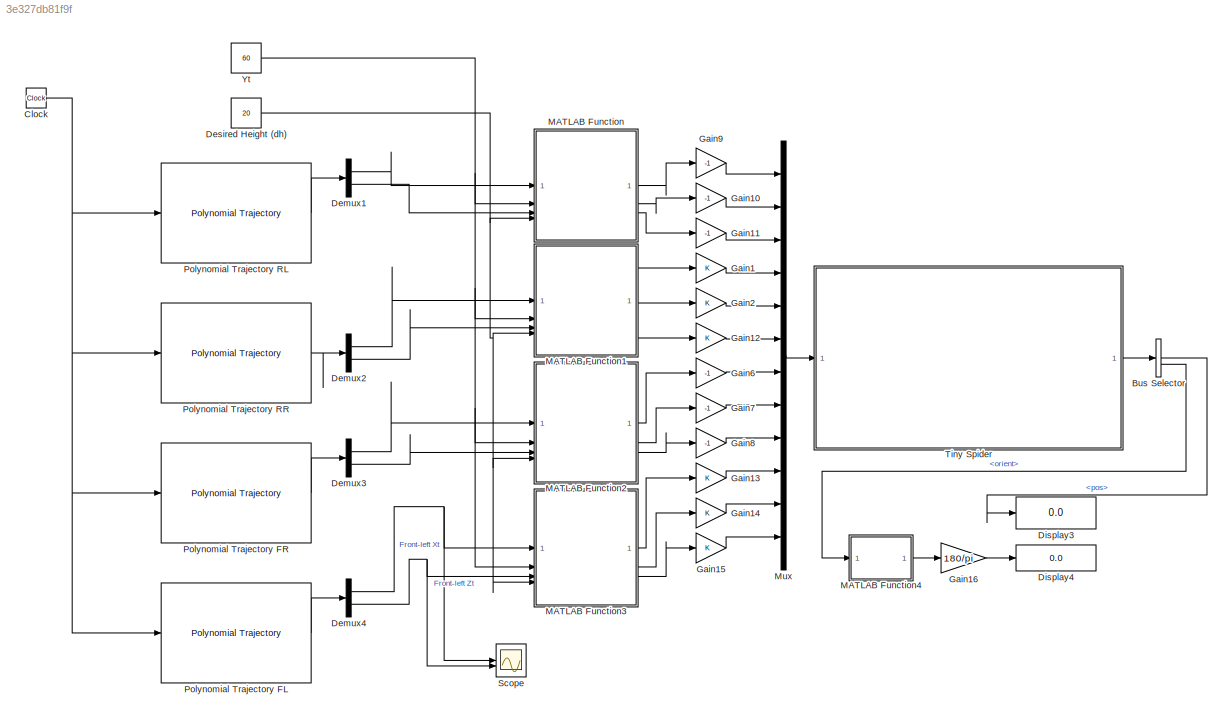
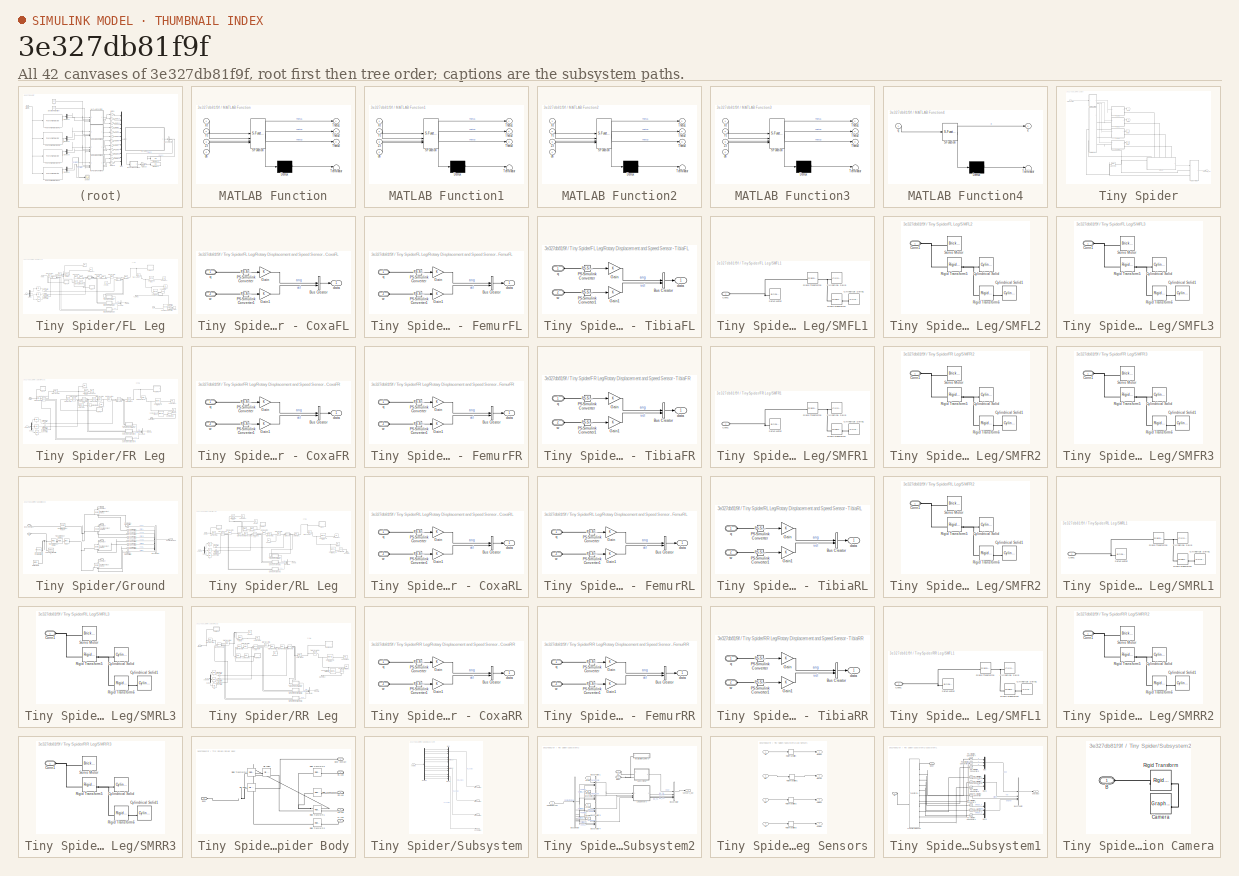
[diagram: thumbnail index - all 42 canvases of the model, root first then tree order]
MODEL slx_3e327db81f9f
KIND model
CONFIG AbsTol = auto
CONFIG EnableMultiTasking = off
CONFIG FixedStep = 0.01
CONFIG MaxStep = auto
CONFIG MinStep = auto
CONFIG RelTol = 1e-3
CONFIG SampleTimeConstraint = Unconstrained
CONFIG SolverName = ode23tb
CONFIG StartTime = 0.0
CONFIG StopTime = 10
BLOCK [BusSelector] Bus Selector
  OutputSignals = body.pos,body.orient
BLOCK [Clock] Clock
BLOCK [Demux] Demux1
  Outputs = 2
BLOCK [Demux] Demux2
  Outputs = 2
BLOCK [Demux] Demux3
  Outputs = 2
BLOCK [Demux] Demux4
  Outputs = 2
BLOCK [Constant] Desired Height (dh)
  Value = 20
BLOCK [Display] Display3
  Decimation = 1
BLOCK [Display] Display4
  Decimation = 1
BLOCK [Gain] Gain1
BLOCK [Gain] Gain10
  Gain = -1
BLOCK [Gain] Gain11
  Gain = -1
BLOCK [Gain] Gain12
BLOCK [Gain] Gain13
BLOCK [Gain] Gain14
BLOCK [Gain] Gain15
BLOCK [Gain] Gain16
  Gain = 180/pi
BLOCK [Gain] Gain2
BLOCK [Gain] Gain6
  Gain = -1
BLOCK [Gain] Gain7
  Gain = -1
BLOCK [Gain] Gain8
  Gain = -1
BLOCK [Gain] Gain9
  Gain = -1
BLOCK [SubSystem] MATLAB Function
  ErrorFcn = Stateflow.Translate.translate
  PermitHierarchicalResolution = ExplicitOnly
  SFBlockType = MATLAB Function
  TreatAsAtomicUnit = on
BLOCK [Demux] MATLAB Function/ Demux 
  Outputs = 1
BLOCK [S-Function] MATLAB Function/ SFunction 
  EnableBusSupport = on
  FunctionName = sf_sfun
  PortCounts = [4 4]
  SFcnIsStateOwnerBlock = off
  SFunctionDeploymentMode = off
  Tag = Stateflow S-Function 3
BLOCK [Terminator] MATLAB Function/ Terminator 
BLOCK [Outport] MATLAB Function/Theta1
BLOCK [Outport] MATLAB Function/Theta2
  Port = 2
BLOCK [Outport] MATLAB Function/Theta3
  Port = 3
BLOCK [Inport] MATLAB Function/Xt
BLOCK [Inport] MATLAB Function/Yt
  Port = 2
BLOCK [Inport] MATLAB Function/Zt
  Port = 3
BLOCK [Inport] MATLAB Function/dh
  Port = 4
BLOCK [SubSystem] MATLAB Function1
  ErrorFcn = Stateflow.Translate.translate
  PermitHierarchicalResolution = ExplicitOnly
  SFBlockType = MATLAB Function
  TreatAsAtomicUnit = on
BLOCK [Demux] MATLAB Function1/ Demux 
  Outputs = 1
BLOCK [S-Function] MATLAB Function1/ SFunction 
  EnableBusSupport = on
  FunctionName = sf_sfun
  PortCounts = [4 4]
  SFcnIsStateOwnerBlock = off
  SFunctionDeploymentMode = off
  Tag = Stateflow S-Function 1
BLOCK [Terminator] MATLAB Function1/ Terminator 
BLOCK [Outport] MATLAB Function1/Theta1
BLOCK [Outport] MATLAB Function1/Theta2
  Port = 2
BLOCK [Outport] MATLAB Function1/Theta3
  Port = 3
BLOCK [Inport] MATLAB Function1/Xt
BLOCK [Inport] MATLAB Function1/Yt
  Port = 2
BLOCK [Inport] MATLAB Function1/Zt
  Port = 3
BLOCK [Inport] MATLAB Function1/dh
  Port = 4
BLOCK [SubSystem] MATLAB Function2
  ErrorFcn = Stateflow.Translate.translate
  PermitHierarchicalResolution = ExplicitOnly
  SFBlockType = MATLAB Function
  TreatAsAtomicUnit = on
BLOCK [Demux] MATLAB Function2/ Demux 
  Outputs = 1
BLOCK [S-Function] MATLAB Function2/ SFunction 
  EnableBusSupport = on
  FunctionName = sf_sfun
  PortCounts = [4 4]
  SFcnIsStateOwnerBlock = off
  SFunctionDeploymentMode = off
  Tag = Stateflow S-Function 2
BLOCK [Terminator] MATLAB Function2/ Terminator 
BLOCK [Outport] MATLAB Function2/Theta1
BLOCK [Outport] MATLAB Function2/Theta2
  Port = 2
BLOCK [Outport] MATLAB Function2/Theta3
  Port = 3
BLOCK [Inport] MATLAB Function2/Xt
BLOCK [Inport] MATLAB Function2/Yt
  Port = 2
BLOCK [Inport] MATLAB Function2/Zt
  Port = 3
BLOCK [Inport] MATLAB Function2/dh
  Port = 4
BLOCK [SubSystem] MATLAB Function3
  ErrorFcn = Stateflow.Translate.translate
  PermitHierarchicalResolution = ExplicitOnly
  SFBlockType = MATLAB Function
  TreatAsAtomicUnit = on
BLOCK [Demux] MATLAB Function3/ Demux 
  Outputs = 1
BLOCK [S-Function] MATLAB Function3/ SFunction 
  EnableBusSupport = on
  FunctionName = sf_sfun
  PortCounts = [4 4]
  SFcnIsStateOwnerBlock = off
  SFunctionDeploymentMode = off
  Tag = Stateflow S-Function 4
BLOCK [Terminator] MATLAB Function3/ Terminator 
BLOCK [Outport] MATLAB Function3/Theta1
BLOCK [Outport] MATLAB Function3/Theta2
  Port = 2
BLOCK [Outport] MATLAB Function3/Theta3
  Port = 3
BLOCK [Inport] MATLAB Function3/Xt
BLOCK [Inport] MATLAB Function3/Yt
  Port = 2
BLOCK [Inport] MATLAB Function3/Zt
  Port = 3
BLOCK [Inport] MATLAB Function3/dh
  Port = 4
BLOCK [SubSystem] MATLAB Function4
  ErrorFcn = Stateflow.Translate.translate
  PermitHierarchicalResolution = ExplicitOnly
  SFBlockType = MATLAB Function
  TreatAsAtomicUnit = on
BLOCK [Demux] MATLAB Function4/ Demux 
  Outputs = 1
BLOCK [S-Function] MATLAB Function4/ SFunction 
  EnableBusSupport = on
  FunctionName = sf_sfun
  PortCounts = [1 2]
  SFcnIsStateOwnerBlock = off
  SFunctionDeploymentMode = off
  Tag = Stateflow S-Function 5
BLOCK [Terminator] MATLAB Function4/ Terminator 
BLOCK [Outport] MATLAB Function4/e
  VectorParamsAs1DForOutWhenUnconnected = off
BLOCK [Inport] MATLAB Function4/q
BLOCK [Mux] Mux
  DisplayOption = bar
  Inputs = 12
BLOCK [Reference] Polynomial Trajectory FL  REF=robotcorelib/Polynomial Trajectory
  SourceBlock = robotcorelib/Polynomial Trajectory
  SourceType = robotics.slcore.internal.block.PolyTrajSys
BLOCK [Reference] Polynomial Trajectory FR  REF=robotcorelib/Polynomial Trajectory
  SourceBlock = robotcorelib/Polynomial Trajectory
  SourceType = robotics.slcore.internal.block.PolyTrajSys
BLOCK [Reference] Polynomial Trajectory RL  REF=robotcorelib/Polynomial Trajectory
  SourceBlock = robotcorelib/Polynomial Trajectory
  SourceType = robotics.slcore.internal.block.PolyTrajSys
BLOCK [Reference] Polynomial Trajectory RR  REF=robotcorelib/Polynomial Trajectory
  SourceBlock = robotcorelib/Polynomial Trajectory
  SourceType = robotics.slcore.internal.block.PolyTrajSys
BLOCK [Scope] Scope
  Floating = off
  NumInputPorts = 2
  ScopeSpecificationString = Simulink.scopes.TimeScopeBlockCfg('CurrentConfiguration', extmgr.ConfigurationSet(extmgr.Configuration('Core','General UI',true,'FigureColor',[1 1 1]),extmgr.Configuration('Core','Source UI',true),extmgr.Configuration('Sources','WiredSimulink',true),extmgr.Configuration('Visuals','Time Domain',true,'SerializedDisplays',{struct('MinYLimReal','-16.25','MaxYLimReal','46.25','YLabelReal','','MinYLimMa...<+1694ch>
BLOCK [SubSystem] Tiny Spider
BLOCK [Reference] Tiny Spider/6-DOF Joint  REF=sm_lib/Joints/6-DOF Joint
  SourceBlock = sm_lib/Joints/6-DOF Joint
  SourceType = 6-DOF Joint
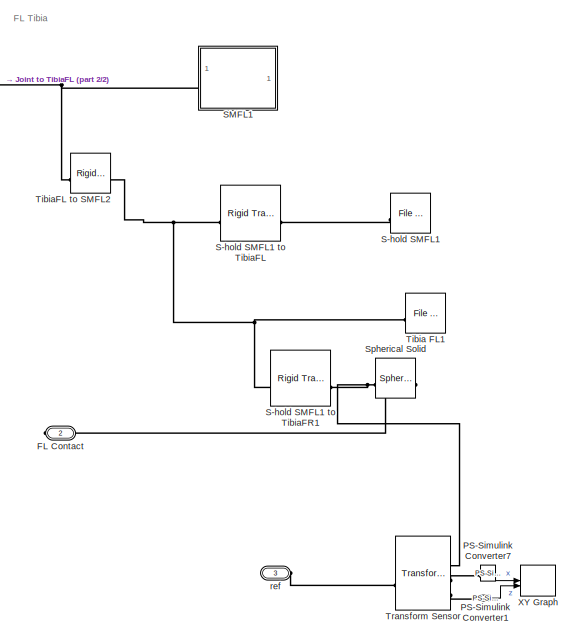
[diagram: Tiny Spider/FL Leg - part 1/2, right side, full height]
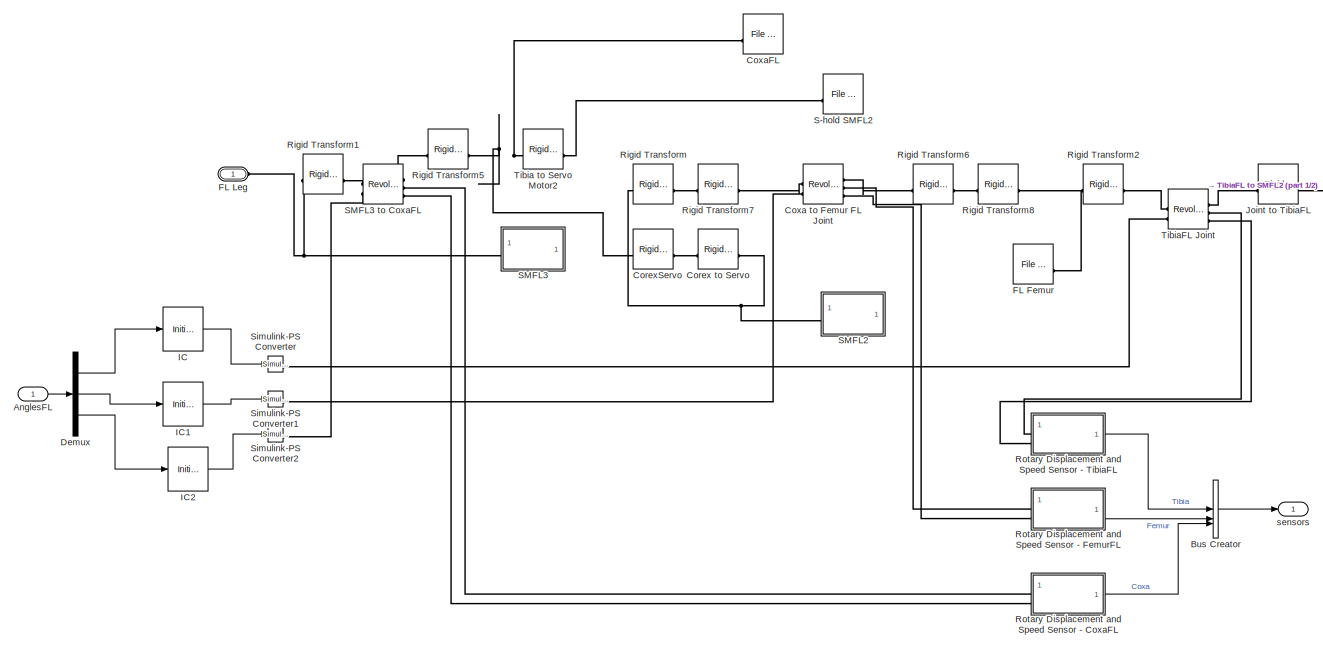
[diagram: Tiny Spider/FL Leg - part 2/2, center side, full height]
BLOCK [SubSystem] Tiny Spider/FL Leg
BLOCK [Inport] Tiny Spider/FL Leg/AnglesFL
BLOCK [BusCreator] Tiny Spider/FL Leg/Bus Creator
  DisplayOption = bar
  InheritFromInputs = on
  Inputs = 3
BLOCK [Reference] Tiny Spider/FL Leg/Corex to Servo   REF=sm_lib/Frames and
Transforms/Rigid
Transform
  SourceBlock = sm_lib/Frames and\nTransforms/Rigid\nTransform
  SourceType = Rigid\nTransform
BLOCK [Reference] Tiny Spider/FL Leg/CorexServo  REF=sm_lib/Frames and
Transforms/Rigid
Transform
  SourceBlock = sm_lib/Frames and\nTransforms/Rigid\nTransform
  SourceType = Rigid\nTransform
BLOCK [Reference] Tiny Spider/FL Leg/Coxa to Femur FL Joint  REF=sm_lib/Joints/Revolute Joint
  SourceBlock = sm_lib/Joints/Revolute Joint
  SourceType = Revolute Joint
BLOCK [Reference] Tiny Spider/FL Leg/CoxaFL  REF=sm_lib/Body Elements/File Solid
  SourceBlock = sm_lib/Body Elements/File Solid
  SourceType = File Solid
BLOCK [Demux] Tiny Spider/FL Leg/Demux
  Outputs = 3
BLOCK [PMIOPort] Tiny Spider/FL Leg/FL Contact
  Port = 2
  Side = Right
BLOCK [Reference] Tiny Spider/FL Leg/FL Femur  REF=sm_lib/Body Elements/File Solid
  SourceBlock = sm_lib/Body Elements/File Solid
  SourceType = File Solid
BLOCK [PMIOPort] Tiny Spider/FL Leg/FL Leg
  Side = Left
BLOCK [InitialCondition] Tiny Spider/FL Leg/IC
  Commented = through
  Value = init_tibiaFL_ang
BLOCK [InitialCondition] Tiny Spider/FL Leg/IC1
  Commented = through
  Value = init_femurFL_ang
BLOCK [InitialCondition] Tiny Spider/FL Leg/IC2
  Commented = through
  Value = init_coxaFL_ang
BLOCK [Reference] Tiny Spider/FL Leg/Joint to TibiaFL  REF=sm_lib/Frames and
Transforms/Rigid
Transform
  SourceBlock = sm_lib/Frames and\nTransforms/Rigid\nTransform
  SourceType = Rigid\nTransform
BLOCK [Reference] Tiny Spider/FL Leg/PS-Simulink Converter1  REF=nesl_utility/PS-Simulink
Converter
  SourceBlock = nesl_utility/PS-Simulink\nConverter
  SourceType = PS-Simulink\nConverter
BLOCK [Reference] Tiny Spider/FL Leg/PS-Simulink Converter7  REF=nesl_utility/PS-Simulink
Converter
  SourceBlock = nesl_utility/PS-Simulink\nConverter
  SourceType = PS-Simulink\nConverter
BLOCK [Reference] Tiny Spider/FL Leg/Rigid Transform  REF=sm_lib/Frames and
Transforms/Rigid
Transform
  SourceBlock = sm_lib/Frames and\nTransforms/Rigid\nTransform
  SourceType = Rigid\nTransform
BLOCK [Reference] Tiny Spider/FL Leg/Rigid Transform1  REF=sm_lib/Frames and
Transforms/Rigid
Transform
  SourceBlock = sm_lib/Frames and\nTransforms/Rigid\nTransform
  SourceType = Rigid\nTransform
BLOCK [Reference] Tiny Spider/FL Leg/Rigid Transform2  REF=sm_lib/Frames and
Transforms/Rigid
Transform
  SourceBlock = sm_lib/Frames and\nTransforms/Rigid\nTransform
  SourceType = Rigid\nTransform
BLOCK [Reference] Tiny Spider/FL Leg/Rigid Transform5  REF=sm_lib/Frames and
Transforms/Rigid
Transform
  SourceBlock = sm_lib/Frames and\nTransforms/Rigid\nTransform
  SourceType = Rigid\nTransform
BLOCK [Reference] Tiny Spider/FL Leg/Rigid Transform6  REF=sm_lib/Frames and
Transforms/Rigid
Transform
  SourceBlock = sm_lib/Frames and\nTransforms/Rigid\nTransform
  SourceType = Rigid\nTransform
BLOCK [Reference] Tiny Spider/FL Leg/Rigid Transform7  REF=sm_lib/Frames and
Transforms/Rigid
Transform
  SourceBlock = sm_lib/Frames and\nTransforms/Rigid\nTransform
  SourceType = Rigid\nTransform
BLOCK [Reference] Tiny Spider/FL Leg/Rigid Transform8  REF=sm_lib/Frames and
Transforms/Rigid
Transform
  SourceBlock = sm_lib/Frames and\nTransforms/Rigid\nTransform
  SourceType = Rigid\nTransform
BLOCK [SubSystem] Tiny Spider/FL Leg/Rotary Displacement and Speed Sensor - CoxaFL
BLOCK [BusCreator] Tiny Spider/FL Leg/Rotary Displacement and Speed Sensor - CoxaFL/Bus Creator
  DisplayOption = bar
  InheritFromInputs = on
  Inputs = 2
BLOCK [Gain] Tiny Spider/FL Leg/Rotary Displacement and Speed Sensor - CoxaFL/Gain
  OutDataTypeStr = Inherit: Same as input
BLOCK [Gain] Tiny Spider/FL Leg/Rotary Displacement and Speed Sensor - CoxaFL/Gain1
  OutDataTypeStr = Inherit: Same as input
BLOCK [Reference] Tiny Spider/FL Leg/Rotary Displacement and Speed Sensor - CoxaFL/PS-Simulink Converter  REF=nesl_utility/PS-Simulink
Converter
  SourceBlock = nesl_utility/PS-Simulink\nConverter
  SourceType = PS-Simulink\nConverter
BLOCK [Reference] Tiny Spider/FL Leg/Rotary Displacement and Speed Sensor - CoxaFL/PS-Simulink Converter1  REF=nesl_utility/PS-Simulink
Converter
  SourceBlock = nesl_utility/PS-Simulink\nConverter
  SourceType = PS-Simulink\nConverter
BLOCK [Outport] Tiny Spider/FL Leg/Rotary Displacement and Speed Sensor - CoxaFL/data
  VectorParamsAs1DForOutWhenUnconnected = off
BLOCK [PMIOPort] Tiny Spider/FL Leg/Rotary Displacement and Speed Sensor - CoxaFL/q
  Side = Left
BLOCK [PMIOPort] Tiny Spider/FL Leg/Rotary Displacement and Speed Sensor - CoxaFL/w
  Port = 2
  Side = Left
BLOCK [SubSystem] Tiny Spider/FL Leg/Rotary Displacement and Speed Sensor - FemurFL
BLOCK [BusCreator] Tiny Spider/FL Leg/Rotary Displacement and Speed Sensor - FemurFL/Bus Creator
  DisplayOption = bar
  InheritFromInputs = on
  Inputs = 2
BLOCK [Gain] Tiny Spider/FL Leg/Rotary Displacement and Speed Sensor - FemurFL/Gain
  OutDataTypeStr = Inherit: Same as input
BLOCK [Gain] Tiny Spider/FL Leg/Rotary Displacement and Speed Sensor - FemurFL/Gain1
  OutDataTypeStr = Inherit: Same as input
BLOCK [Reference] Tiny Spider/FL Leg/Rotary Displacement and Speed Sensor - FemurFL/PS-Simulink Converter  REF=nesl_utility/PS-Simulink
Converter
  SourceBlock = nesl_utility/PS-Simulink\nConverter
  SourceType = PS-Simulink\nConverter
BLOCK [Reference] Tiny Spider/FL Leg/Rotary Displacement and Speed Sensor - FemurFL/PS-Simulink Converter1  REF=nesl_utility/PS-Simulink
Converter
  SourceBlock = nesl_utility/PS-Simulink\nConverter
  SourceType = PS-Simulink\nConverter
BLOCK [Outport] Tiny Spider/FL Leg/Rotary Displacement and Speed Sensor - FemurFL/data
  VectorParamsAs1DForOutWhenUnconnected = off
BLOCK [PMIOPort] Tiny Spider/FL Leg/Rotary Displacement and Speed Sensor - FemurFL/q
  Side = Left
BLOCK [PMIOPort] Tiny Spider/FL Leg/Rotary Displacement and Speed Sensor - FemurFL/w
  Port = 2
  Side = Left
BLOCK [SubSystem] Tiny Spider/FL Leg/Rotary Displacement and Speed Sensor - TibiaFL
BLOCK [BusCreator] Tiny Spider/FL Leg/Rotary Displacement and Speed Sensor - TibiaFL/Bus Creator
  DisplayOption = bar
  InheritFromInputs = on
  Inputs = 2
BLOCK [Gain] Tiny Spider/FL Leg/Rotary Displacement and Speed Sensor - TibiaFL/Gain
BLOCK [Gain] Tiny Spider/FL Leg/Rotary Displacement and Speed Sensor - TibiaFL/Gain1
BLOCK [Reference] Tiny Spider/FL Leg/Rotary Displacement and Speed Sensor - TibiaFL/PS-Simulink Converter  REF=nesl_utility/PS-Simulink
Converter
  SourceBlock = nesl_utility/PS-Simulink\nConverter
  SourceType = PS-Simulink\nConverter
BLOCK [Reference] Tiny Spider/FL Leg/Rotary Displacement and Speed Sensor - TibiaFL/PS-Simulink Converter1  REF=nesl_utility/PS-Simulink
Converter
  SourceBlock = nesl_utility/PS-Simulink\nConverter
  SourceType = PS-Simulink\nConverter
BLOCK [Outport] Tiny Spider/FL Leg/Rotary Displacement and Speed Sensor - TibiaFL/data
  VectorParamsAs1DForOutWhenUnconnected = off
BLOCK [PMIOPort] Tiny Spider/FL Leg/Rotary Displacement and Speed Sensor - TibiaFL/q
  Side = Left
BLOCK [PMIOPort] Tiny Spider/FL Leg/Rotary Displacement and Speed Sensor - TibiaFL/w
  Port = 2
  Side = Left
BLOCK [Reference] Tiny Spider/FL Leg/S-hold SMFL1  REF=sm_lib/Body Elements/File Solid
  SourceBlock = sm_lib/Body Elements/File Solid
  SourceType = File Solid
BLOCK [Reference] Tiny Spider/FL Leg/S-hold SMFL1 to TibiaFL  REF=sm_lib/Frames and
Transforms/Rigid
Transform
  SourceBlock = sm_lib/Frames and\nTransforms/Rigid\nTransform
  SourceType = Rigid\nTransform
BLOCK [Reference] Tiny Spider/FL Leg/S-hold SMFL1 to TibiaFR1  REF=sm_lib/Frames and
Transforms/Rigid
Transform
  SourceBlock = sm_lib/Frames and\nTransforms/Rigid\nTransform
  SourceType = Rigid\nTransform
BLOCK [Reference] Tiny Spider/FL Leg/S-hold SMFL2  REF=sm_lib/Body Elements/File Solid
  SourceBlock = sm_lib/Body Elements/File Solid
  SourceType = File Solid
BLOCK [SubSystem] Tiny Spider/FL Leg/SMFL1
BLOCK [PMIOPort] Tiny Spider/FL Leg/SMFL1/Conn1
  Side = Left
BLOCK [Reference] Tiny Spider/FL Leg/SMFL1/Cylindrical Solid  REF=sm_lib/Body Elements/Cylindrical Solid
  SourceBlock = sm_lib/Body Elements/Cylindrical Solid
  SourceType = Cylindrical Solid
BLOCK [Reference] Tiny Spider/FL Leg/SMFL1/Cylindrical Solid1  REF=sm_lib/Body Elements/Cylindrical Solid
  SourceBlock = sm_lib/Body Elements/Cylindrical Solid
  SourceType = Cylindrical Solid
BLOCK [Reference] Tiny Spider/FL Leg/SMFL1/Rigid Transform5  REF=sm_lib/Frames and
Transforms/Rigid
Transform
  SourceBlock = sm_lib/Frames and\nTransforms/Rigid\nTransform
  SourceType = Rigid\nTransform
BLOCK [Reference] Tiny Spider/FL Leg/SMFL1/Rigid Transform6  REF=sm_lib/Frames and
Transforms/Rigid
Transform
  SourceBlock = sm_lib/Frames and\nTransforms/Rigid\nTransform
  SourceType = Rigid\nTransform
BLOCK [Reference] Tiny Spider/FL Leg/SMFL1/Servo Motor  REF=sm_lib/Body Elements/Brick Solid
  SourceBlock = sm_lib/Body Elements/Brick Solid
  SourceType = Brick Solid
BLOCK [SubSystem] Tiny Spider/FL Leg/SMFL2
BLOCK [PMIOPort] Tiny Spider/FL Leg/SMFL2/Conn1
  Side = Left
BLOCK [Reference] Tiny Spider/FL Leg/SMFL2/Cylindrical Solid  REF=sm_lib/Body Elements/Cylindrical Solid
  SourceBlock = sm_lib/Body Elements/Cylindrical Solid
  SourceType = Cylindrical Solid
BLOCK [Reference] Tiny Spider/FL Leg/SMFL2/Cylindrical Solid1  REF=sm_lib/Body Elements/Cylindrical Solid
  SourceBlock = sm_lib/Body Elements/Cylindrical Solid
  SourceType = Cylindrical Solid
BLOCK [Reference] Tiny Spider/FL Leg/SMFL2/Rigid Transform5  REF=sm_lib/Frames and
Transforms/Rigid
Transform
  SourceBlock = sm_lib/Frames and\nTransforms/Rigid\nTransform
  SourceType = Rigid\nTransform
BLOCK [Reference] Tiny Spider/FL Leg/SMFL2/Rigid Transform6  REF=sm_lib/Frames and
Transforms/Rigid
Transform
  SourceBlock = sm_lib/Frames and\nTransforms/Rigid\nTransform
  SourceType = Rigid\nTransform
BLOCK [Reference] Tiny Spider/FL Leg/SMFL2/Servo Motor  REF=sm_lib/Body Elements/Brick Solid
  SourceBlock = sm_lib/Body Elements/Brick Solid
  SourceType = Brick Solid
BLOCK [SubSystem] Tiny Spider/FL Leg/SMFL3
BLOCK [Reference] Tiny Spider/FL Leg/SMFL3 to CoxaFL  REF=sm_lib/Joints/Revolute Joint
  SourceBlock = sm_lib/Joints/Revolute Joint
  SourceType = Revolute Joint
BLOCK [PMIOPort] Tiny Spider/FL Leg/SMFL3/Conn1
  Side = Left
BLOCK [Reference] Tiny Spider/FL Leg/SMFL3/Cylindrical Solid  REF=sm_lib/Body Elements/Cylindrical Solid
  SourceBlock = sm_lib/Body Elements/Cylindrical Solid
  SourceType = Cylindrical Solid
BLOCK [Reference] Tiny Spider/FL Leg/SMFL3/Cylindrical Solid1  REF=sm_lib/Body Elements/Cylindrical Solid
  SourceBlock = sm_lib/Body Elements/Cylindrical Solid
  SourceType = Cylindrical Solid
BLOCK [Reference] Tiny Spider/FL Leg/SMFL3/Rigid Transform5  REF=sm_lib/Frames and
Transforms/Rigid
Transform
  SourceBlock = sm_lib/Frames and\nTransforms/Rigid\nTransform
  SourceType = Rigid\nTransform
BLOCK [Reference] Tiny Spider/FL Leg/SMFL3/Rigid Transform6  REF=sm_lib/Frames and
Transforms/Rigid
Transform
  SourceBlock = sm_lib/Frames and\nTransforms/Rigid\nTransform
  SourceType = Rigid\nTransform
BLOCK [Reference] Tiny Spider/FL Leg/SMFL3/Servo Motor  REF=sm_lib/Body Elements/Brick Solid
  SourceBlock = sm_lib/Body Elements/Brick Solid
  SourceType = Brick Solid
BLOCK [Reference] Tiny Spider/FL Leg/Simulink-PS Converter  REF=nesl_utility/Simulink-PS
Converter
  SourceBlock = nesl_utility/Simulink-PS\nConverter
  SourceType = Simulink-PS\nConverter
BLOCK [Reference] Tiny Spider/FL Leg/Simulink-PS Converter1  REF=nesl_utility/Simulink-PS
Converter
  SourceBlock = nesl_utility/Simulink-PS\nConverter
  SourceType = Simulink-PS\nConverter
BLOCK [Reference] Tiny Spider/FL Leg/Simulink-PS Converter2  REF=nesl_utility/Simulink-PS
Converter
  SourceBlock = nesl_utility/Simulink-PS\nConverter
  SourceType = Simulink-PS\nConverter
BLOCK [Reference] Tiny Spider/FL Leg/Spherical Solid  REF=sm_lib/Body Elements/Spherical Solid
  SourceBlock = sm_lib/Body Elements/Spherical Solid
  SourceType = Spherical Solid
BLOCK [Reference] Tiny Spider/FL Leg/Tibia FL1  REF=sm_lib/Body Elements/File Solid
  SourceBlock = sm_lib/Body Elements/File Solid
  SourceType = File Solid
BLOCK [Reference] Tiny Spider/FL Leg/Tibia to Servo Motor2  REF=sm_lib/Frames and
Transforms/Rigid
Transform
  SourceBlock = sm_lib/Frames and\nTransforms/Rigid\nTransform
  SourceType = Rigid\nTransform
BLOCK [Reference] Tiny Spider/FL Leg/TibiaFL Joint  REF=sm_lib/Joints/Revolute Joint
  SourceBlock = sm_lib/Joints/Revolute Joint
  SourceType = Revolute Joint
BLOCK [Reference] Tiny Spider/FL Leg/TibiaFL to SMFL2  REF=sm_lib/Frames and
Transforms/Rigid
Transform
  SourceBlock = sm_lib/Frames and\nTransforms/Rigid\nTransform
  SourceType = Rigid\nTransform
BLOCK [Reference] Tiny Spider/FL Leg/Transform Sensor  REF=sm_lib/Frames and
Transforms/Transform
Sensor
  SourceBlock = sm_lib/Frames and\nTransforms/Transform\nSensor
  SourceType = Transform\nSensor
BLOCK [Record] Tiny Spider/FL Leg/XY Graph
  CompatibilityTag = XY
  FileSettingsInternal = {"entries":[{"content":{"excelSettings":{"content":{},"type":"Streamout.ExcelSettings"}},"type":"Streamout.FileSettingStorage","uuid":""}],"packageUris":["http:\/\/schema.mathworks.com\/mf0\/streamout_blocks\/R2020a"],"version":"1.0"}
  Layout = [1 1]
  SignalsInternal = {"entries":[{"content":{"signals":[{"content":{"blockPath":[],"dimensions":[1],"domain":"","lineColor":"#a2142f","plots":[1],"port":1,"signalID":15736,"signalName":"x"},"type":"RecordBlkView.Signal","uuid":""},{"content":{"blockPath":[],"dimensions":[1],"domain":"","lineColor":"#139fff","plots":[1],"port":2,"signalID":15739,"signalName":"z"},"type":"RecordBlkView.Signal","uuid":""}]},"type":"Recor...<+130ch>
  VisualizationBindings = {"xyplotplugin":{"info":[{"series":[{"bindingParametersList":[{"parameter":"Y-Axis","signalID":15739,"signalName":"z"},{"parameter":"X-Axis","signalID":15736,"signalName":"x"}],"seriesID":28103}],"subplotID":1}]}}
BLOCK [PMIOPort] Tiny Spider/FL Leg/ref
  Port = 3
  Side = Left
BLOCK [Outport] Tiny Spider/FL Leg/sensors
  VectorParamsAs1DForOutWhenUnconnected = off
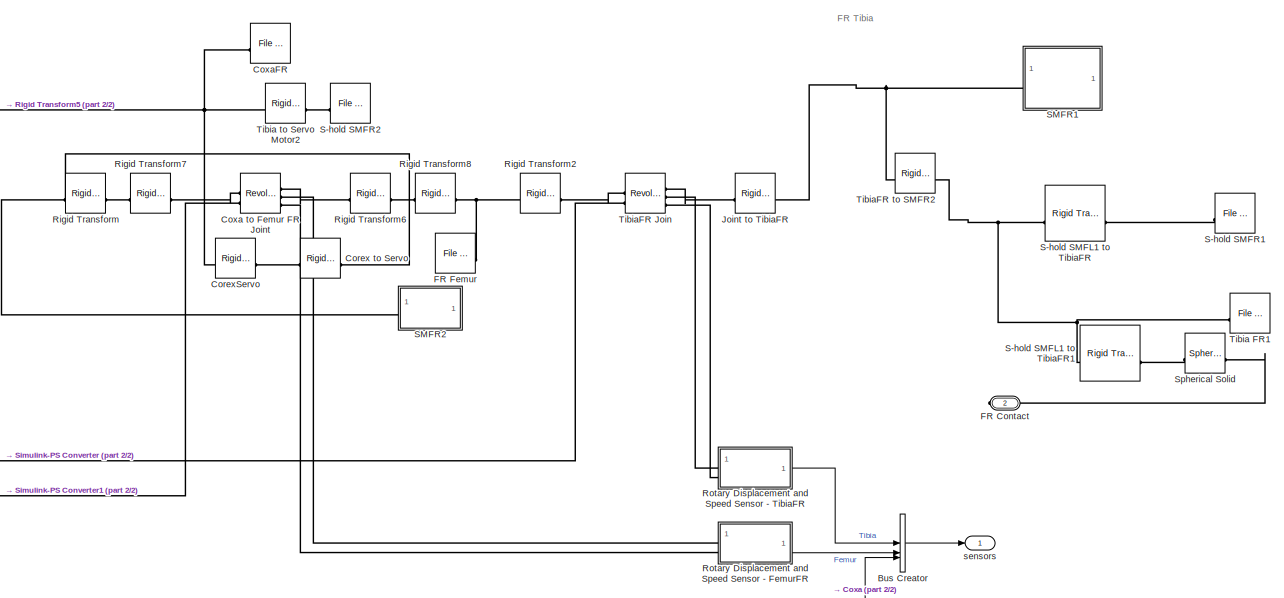
[diagram: Tiny Spider/FR Leg - part 1/2, most of the canvas]
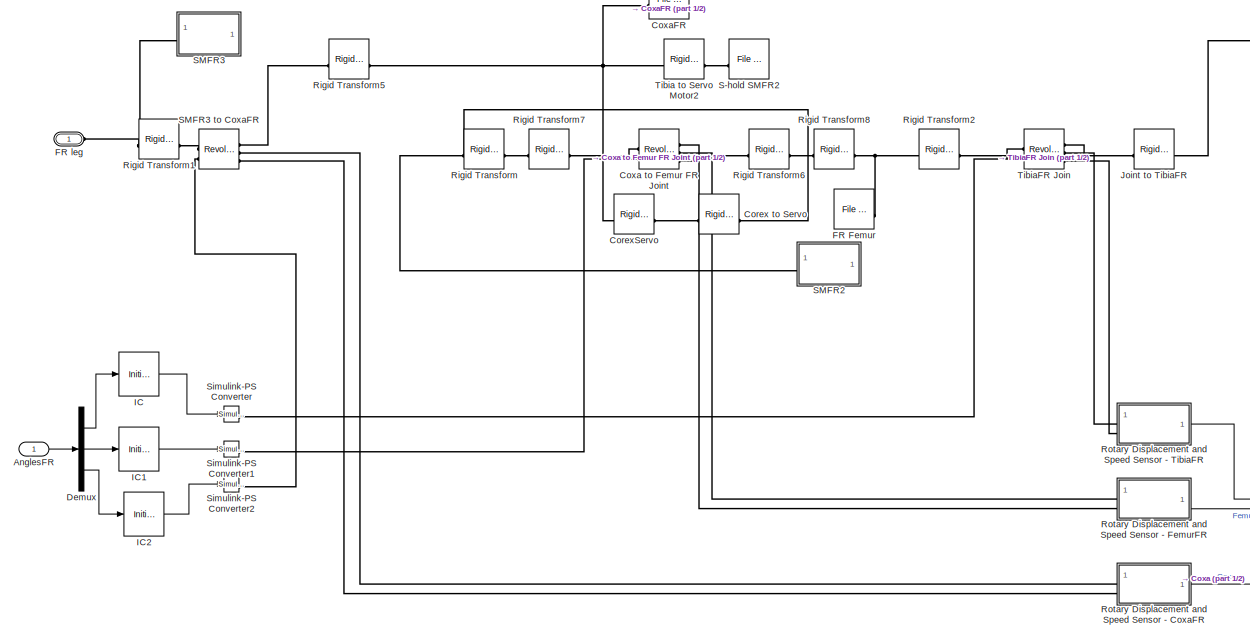
[diagram: Tiny Spider/FR Leg - part 2/2, most of the canvas]
BLOCK [SubSystem] Tiny Spider/FR Leg
BLOCK [Inport] Tiny Spider/FR Leg/AnglesFR
BLOCK [BusCreator] Tiny Spider/FR Leg/Bus Creator
  DisplayOption = bar
  InheritFromInputs = on
  Inputs = 3
BLOCK [Reference] Tiny Spider/FR Leg/Corex to Servo   REF=sm_lib/Frames and
Transforms/Rigid
Transform
  SourceBlock = sm_lib/Frames and\nTransforms/Rigid\nTransform
  SourceType = Rigid\nTransform
BLOCK [Reference] Tiny Spider/FR Leg/CorexServo  REF=sm_lib/Frames and
Transforms/Rigid
Transform
  SourceBlock = sm_lib/Frames and\nTransforms/Rigid\nTransform
  SourceType = Rigid\nTransform
BLOCK [Reference] Tiny Spider/FR Leg/Coxa to Femur FR Joint  REF=sm_lib/Joints/Revolute Joint
  SourceBlock = sm_lib/Joints/Revolute Joint
  SourceType = Revolute Joint
BLOCK [Reference] Tiny Spider/FR Leg/CoxaFR  REF=sm_lib/Body Elements/File Solid
  SourceBlock = sm_lib/Body Elements/File Solid
  SourceType = File Solid
BLOCK [Demux] Tiny Spider/FR Leg/Demux
  Outputs = 3
BLOCK [PMIOPort] Tiny Spider/FR Leg/FR Contact
  Port = 2
  Side = Right
BLOCK [Reference] Tiny Spider/FR Leg/FR Femur  REF=sm_lib/Body Elements/File Solid
  SourceBlock = sm_lib/Body Elements/File Solid
  SourceType = File Solid
BLOCK [PMIOPort] Tiny Spider/FR Leg/FR leg
  Side = Left
BLOCK [InitialCondition] Tiny Spider/FR Leg/IC
  Commented = through
  Value = init_tibiaFR_ang
BLOCK [InitialCondition] Tiny Spider/FR Leg/IC1
  Commented = through
  Value = init_femurFR_ang
BLOCK [InitialCondition] Tiny Spider/FR Leg/IC2
  Commented = through
  Value = init_coxaFR_ang
BLOCK [Reference] Tiny Spider/FR Leg/Joint to TibiaFR  REF=sm_lib/Frames and
Transforms/Rigid
Transform
  SourceBlock = sm_lib/Frames and\nTransforms/Rigid\nTransform
  SourceType = Rigid\nTransform
BLOCK [Reference] Tiny Spider/FR Leg/Rigid Transform  REF=sm_lib/Frames and
Transforms/Rigid
Transform
  SourceBlock = sm_lib/Frames and\nTransforms/Rigid\nTransform
  SourceType = Rigid\nTransform
BLOCK [Reference] Tiny Spider/FR Leg/Rigid Transform1  REF=sm_lib/Frames and
Transforms/Rigid
Transform
  SourceBlock = sm_lib/Frames and\nTransforms/Rigid\nTransform
  SourceType = Rigid\nTransform
BLOCK [Reference] Tiny Spider/FR Leg/Rigid Transform2  REF=sm_lib/Frames and
Transforms/Rigid
Transform
  SourceBlock = sm_lib/Frames and\nTransforms/Rigid\nTransform
  SourceType = Rigid\nTransform
BLOCK [Reference] Tiny Spider/FR Leg/Rigid Transform5  REF=sm_lib/Frames and
Transforms/Rigid
Transform
  SourceBlock = sm_lib/Frames and\nTransforms/Rigid\nTransform
  SourceType = Rigid\nTransform
BLOCK [Reference] Tiny Spider/FR Leg/Rigid Transform6  REF=sm_lib/Frames and
Transforms/Rigid
Transform
  SourceBlock = sm_lib/Frames and\nTransforms/Rigid\nTransform
  SourceType = Rigid\nTransform
BLOCK [Reference] Tiny Spider/FR Leg/Rigid Transform7  REF=sm_lib/Frames and
Transforms/Rigid
Transform
  SourceBlock = sm_lib/Frames and\nTransforms/Rigid\nTransform
  SourceType = Rigid\nTransform
BLOCK [Reference] Tiny Spider/FR Leg/Rigid Transform8  REF=sm_lib/Frames and
Transforms/Rigid
Transform
  SourceBlock = sm_lib/Frames and\nTransforms/Rigid\nTransform
  SourceType = Rigid\nTransform
BLOCK [SubSystem] Tiny Spider/FR Leg/Rotary Displacement and Speed Sensor - CoxaFR
BLOCK [BusCreator] Tiny Spider/FR Leg/Rotary Displacement and Speed Sensor - CoxaFR/Bus Creator
  DisplayOption = bar
  InheritFromInputs = on
  Inputs = 2
BLOCK [Gain] Tiny Spider/FR Leg/Rotary Displacement and Speed Sensor - CoxaFR/Gain
  OutDataTypeStr = Inherit: Same as input
BLOCK [Gain] Tiny Spider/FR Leg/Rotary Displacement and Speed Sensor - CoxaFR/Gain1
  OutDataTypeStr = Inherit: Same as input
BLOCK [Reference] Tiny Spider/FR Leg/Rotary Displacement and Speed Sensor - CoxaFR/PS-Simulink Converter  REF=nesl_utility/PS-Simulink
Converter
  SourceBlock = nesl_utility/PS-Simulink\nConverter
  SourceType = PS-Simulink\nConverter
BLOCK [Reference] Tiny Spider/FR Leg/Rotary Displacement and Speed Sensor - CoxaFR/PS-Simulink Converter1  REF=nesl_utility/PS-Simulink
Converter
  SourceBlock = nesl_utility/PS-Simulink\nConverter
  SourceType = PS-Simulink\nConverter
BLOCK [Outport] Tiny Spider/FR Leg/Rotary Displacement and Speed Sensor - CoxaFR/data
  VectorParamsAs1DForOutWhenUnconnected = off
BLOCK [PMIOPort] Tiny Spider/FR Leg/Rotary Displacement and Speed Sensor - CoxaFR/q
  Side = Left
BLOCK [PMIOPort] Tiny Spider/FR Leg/Rotary Displacement and Speed Sensor - CoxaFR/w
  Port = 2
  Side = Left
BLOCK [SubSystem] Tiny Spider/FR Leg/Rotary Displacement and Speed Sensor - FemurFR
BLOCK [BusCreator] Tiny Spider/FR Leg/Rotary Displacement and Speed Sensor - FemurFR/Bus Creator
  DisplayOption = bar
  InheritFromInputs = on
  Inputs = 2
BLOCK [Gain] Tiny Spider/FR Leg/Rotary Displacement and Speed Sensor - FemurFR/Gain
  OutDataTypeStr = Inherit: Same as input
BLOCK [Gain] Tiny Spider/FR Leg/Rotary Displacement and Speed Sensor - FemurFR/Gain1
  OutDataTypeStr = Inherit: Same as input
BLOCK [Reference] Tiny Spider/FR Leg/Rotary Displacement and Speed Sensor - FemurFR/PS-Simulink Converter  REF=nesl_utility/PS-Simulink
Converter
  SourceBlock = nesl_utility/PS-Simulink\nConverter
  SourceType = PS-Simulink\nConverter
BLOCK [Reference] Tiny Spider/FR Leg/Rotary Displacement and Speed Sensor - FemurFR/PS-Simulink Converter1  REF=nesl_utility/PS-Simulink
Converter
  SourceBlock = nesl_utility/PS-Simulink\nConverter
  SourceType = PS-Simulink\nConverter
BLOCK [Outport] Tiny Spider/FR Leg/Rotary Displacement and Speed Sensor - FemurFR/data
  VectorParamsAs1DForOutWhenUnconnected = off
BLOCK [PMIOPort] Tiny Spider/FR Leg/Rotary Displacement and Speed Sensor - FemurFR/q
  Side = Left
BLOCK [PMIOPort] Tiny Spider/FR Leg/Rotary Displacement and Speed Sensor - FemurFR/w
  Port = 2
  Side = Left
BLOCK [SubSystem] Tiny Spider/FR Leg/Rotary Displacement and Speed Sensor - TibiaFR
BLOCK [BusCreator] Tiny Spider/FR Leg/Rotary Displacement and Speed Sensor - TibiaFR/Bus Creator
  DisplayOption = bar
  InheritFromInputs = on
  Inputs = 2
BLOCK [Gain] Tiny Spider/FR Leg/Rotary Displacement and Speed Sensor - TibiaFR/Gain
BLOCK [Gain] Tiny Spider/FR Leg/Rotary Displacement and Speed Sensor - TibiaFR/Gain1
BLOCK [Reference] Tiny Spider/FR Leg/Rotary Displacement and Speed Sensor - TibiaFR/PS-Simulink Converter  REF=nesl_utility/PS-Simulink
Converter
  SourceBlock = nesl_utility/PS-Simulink\nConverter
  SourceType = PS-Simulink\nConverter
BLOCK [Reference] Tiny Spider/FR Leg/Rotary Displacement and Speed Sensor - TibiaFR/PS-Simulink Converter1  REF=nesl_utility/PS-Simulink
Converter
  SourceBlock = nesl_utility/PS-Simulink\nConverter
  SourceType = PS-Simulink\nConverter
BLOCK [Outport] Tiny Spider/FR Leg/Rotary Displacement and Speed Sensor - TibiaFR/data
  VectorParamsAs1DForOutWhenUnconnected = off
BLOCK [PMIOPort] Tiny Spider/FR Leg/Rotary Displacement and Speed Sensor - TibiaFR/q
  Side = Left
BLOCK [PMIOPort] Tiny Spider/FR Leg/Rotary Displacement and Speed Sensor - TibiaFR/w
  Port = 2
  Side = Left
BLOCK [Reference] Tiny Spider/FR Leg/S-hold SMFL1 to TibiaFR  REF=sm_lib/Frames and
Transforms/Rigid
Transform
  SourceBlock = sm_lib/Frames and\nTransforms/Rigid\nTransform
  SourceType = Rigid\nTransform
BLOCK [Reference] Tiny Spider/FR Leg/S-hold SMFL1 to TibiaFR1  REF=sm_lib/Frames and
Transforms/Rigid
Transform
  SourceBlock = sm_lib/Frames and\nTransforms/Rigid\nTransform
  SourceType = Rigid\nTransform
BLOCK [Reference] Tiny Spider/FR Leg/S-hold SMFR1  REF=sm_lib/Body Elements/File Solid
  SourceBlock = sm_lib/Body Elements/File Solid
  SourceType = File Solid
BLOCK [Reference] Tiny Spider/FR Leg/S-hold SMFR2  REF=sm_lib/Body Elements/File Solid
  SourceBlock = sm_lib/Body Elements/File Solid
  SourceType = File Solid
BLOCK [SubSystem] Tiny Spider/FR Leg/SMFR1
BLOCK [PMIOPort] Tiny Spider/FR Leg/SMFR1/Conn1
  Side = Left
BLOCK [Reference] Tiny Spider/FR Leg/SMFR1/Cylindrical Solid  REF=sm_lib/Body Elements/Cylindrical Solid
  SourceBlock = sm_lib/Body Elements/Cylindrical Solid
  SourceType = Cylindrical Solid
BLOCK [Reference] Tiny Spider/FR Leg/SMFR1/Cylindrical Solid1  REF=sm_lib/Body Elements/Cylindrical Solid
  SourceBlock = sm_lib/Body Elements/Cylindrical Solid
  SourceType = Cylindrical Solid
BLOCK [Reference] Tiny Spider/FR Leg/SMFR1/Rigid Transform5  REF=sm_lib/Frames and
Transforms/Rigid
Transform
  SourceBlock = sm_lib/Frames and\nTransforms/Rigid\nTransform
  SourceType = Rigid\nTransform
BLOCK [Reference] Tiny Spider/FR Leg/SMFR1/Rigid Transform6  REF=sm_lib/Frames and
Transforms/Rigid
Transform
  SourceBlock = sm_lib/Frames and\nTransforms/Rigid\nTransform
  SourceType = Rigid\nTransform
BLOCK [Reference] Tiny Spider/FR Leg/SMFR1/Servo Motor  REF=sm_lib/Body Elements/Brick Solid
  SourceBlock = sm_lib/Body Elements/Brick Solid
  SourceType = Brick Solid
BLOCK [SubSystem] Tiny Spider/FR Leg/SMFR2
BLOCK [PMIOPort] Tiny Spider/FR Leg/SMFR2/Conn1
  Side = Left
BLOCK [Reference] Tiny Spider/FR Leg/SMFR2/Cylindrical Solid  REF=sm_lib/Body Elements/Cylindrical Solid
  SourceBlock = sm_lib/Body Elements/Cylindrical Solid
  SourceType = Cylindrical Solid
BLOCK [Reference] Tiny Spider/FR Leg/SMFR2/Cylindrical Solid1  REF=sm_lib/Body Elements/Cylindrical Solid
  SourceBlock = sm_lib/Body Elements/Cylindrical Solid
  SourceType = Cylindrical Solid
BLOCK [Reference] Tiny Spider/FR Leg/SMFR2/Rigid Transform5  REF=sm_lib/Frames and
Transforms/Rigid
Transform
  SourceBlock = sm_lib/Frames and\nTransforms/Rigid\nTransform
  SourceType = Rigid\nTransform
BLOCK [Reference] Tiny Spider/FR Leg/SMFR2/Rigid Transform6  REF=sm_lib/Frames and
Transforms/Rigid
Transform
  SourceBlock = sm_lib/Frames and\nTransforms/Rigid\nTransform
  SourceType = Rigid\nTransform
BLOCK [Reference] Tiny Spider/FR Leg/SMFR2/Servo Motor  REF=sm_lib/Body Elements/Brick Solid
  SourceBlock = sm_lib/Body Elements/Brick Solid
  SourceType = Brick Solid
BLOCK [SubSystem] Tiny Spider/FR Leg/SMFR3
BLOCK [Reference] Tiny Spider/FR Leg/SMFR3 to CoxaFR  REF=sm_lib/Joints/Revolute Joint
  SourceBlock = sm_lib/Joints/Revolute Joint
  SourceType = Revolute Joint
BLOCK [PMIOPort] Tiny Spider/FR Leg/SMFR3/Conn1
  Side = Left
BLOCK [Reference] Tiny Spider/FR Leg/SMFR3/Cylindrical Solid  REF=sm_lib/Body Elements/Cylindrical Solid
  SourceBlock = sm_lib/Body Elements/Cylindrical Solid
  SourceType = Cylindrical Solid
BLOCK [Reference] Tiny Spider/FR Leg/SMFR3/Cylindrical Solid1  REF=sm_lib/Body Elements/Cylindrical Solid
  SourceBlock = sm_lib/Body Elements/Cylindrical Solid
  SourceType = Cylindrical Solid
BLOCK [Reference] Tiny Spider/FR Leg/SMFR3/Rigid Transform5  REF=sm_lib/Frames and
Transforms/Rigid
Transform
  SourceBlock = sm_lib/Frames and\nTransforms/Rigid\nTransform
  SourceType = Rigid\nTransform
BLOCK [Reference] Tiny Spider/FR Leg/SMFR3/Rigid Transform6  REF=sm_lib/Frames and
Transforms/Rigid
Transform
  SourceBlock = sm_lib/Frames and\nTransforms/Rigid\nTransform
  SourceType = Rigid\nTransform
BLOCK [Reference] Tiny Spider/FR Leg/SMFR3/Servo Motor  REF=sm_lib/Body Elements/Brick Solid
  SourceBlock = sm_lib/Body Elements/Brick Solid
  SourceType = Brick Solid
BLOCK [Reference] Tiny Spider/FR Leg/Simulink-PS Converter  REF=nesl_utility/Simulink-PS
Converter
  SourceBlock = nesl_utility/Simulink-PS\nConverter
  SourceType = Simulink-PS\nConverter
BLOCK [Reference] Tiny Spider/FR Leg/Simulink-PS Converter1  REF=nesl_utility/Simulink-PS
Converter
  SourceBlock = nesl_utility/Simulink-PS\nConverter
  SourceType = Simulink-PS\nConverter
BLOCK [Reference] Tiny Spider/FR Leg/Simulink-PS Converter2  REF=nesl_utility/Simulink-PS
Converter
  SourceBlock = nesl_utility/Simulink-PS\nConverter
  SourceType = Simulink-PS\nConverter
BLOCK [Reference] Tiny Spider/FR Leg/Spherical Solid  REF=sm_lib/Body Elements/Spherical Solid
  SourceBlock = sm_lib/Body Elements/Spherical Solid
  SourceType = Spherical Solid
BLOCK [Reference] Tiny Spider/FR Leg/Tibia FR1  REF=sm_lib/Body Elements/File Solid
  SourceBlock = sm_lib/Body Elements/File Solid
  SourceType = File Solid
BLOCK [Reference] Tiny Spider/FR Leg/Tibia to Servo Motor2  REF=sm_lib/Frames and
Transforms/Rigid
Transform
  SourceBlock = sm_lib/Frames and\nTransforms/Rigid\nTransform
  SourceType = Rigid\nTransform
BLOCK [Reference] Tiny Spider/FR Leg/TibiaFR Join  REF=sm_lib/Joints/Revolute Joint
  SourceBlock = sm_lib/Joints/Revolute Joint
  SourceType = Revolute Joint
BLOCK [Reference] Tiny Spider/FR Leg/TibiaFR to SMFR2  REF=sm_lib/Frames and
Transforms/Rigid
Transform
  SourceBlock = sm_lib/Frames and\nTransforms/Rigid\nTransform
  SourceType = Rigid\nTransform
BLOCK [Outport] Tiny Spider/FR Leg/sensors
  VectorParamsAs1DForOutWhenUnconnected = off
BLOCK [Goto] Tiny Spider/Goto
  TagVisibility = global
BLOCK [Goto] Tiny Spider/Goto1
  GotoTag = B
  TagVisibility = global
BLOCK [Goto] Tiny Spider/Goto2
  GotoTag = C
  TagVisibility = global
BLOCK [Goto] Tiny Spider/Goto3
  GotoTag = D
  TagVisibility = global
BLOCK [SubSystem] Tiny Spider/Ground
  PortSchema = {"entries":[{"content":{"sides":[{"content":{"connectorIds":["LConn1"]},"type":"ConnectorPlacement.EquallySpacedRectSide","uuid":"d7feb522-c0d5-44f8-966b-1947cd99c49a"},{"content":{"connectorIds":["Out1"],"side":"RIGHT"},"type":"ConnectorPlacement.EquallySpacedRectSide","uuid":"2db084ce-ae72-497d-a8f8-8ac11f652e40"},{"content":{"connectorIds":["LConn2","LConn3","LConn4","LConn5","LConn6"],"side":"...<+431ch>
BLOCK [PMIOPort] Tiny Spider/Ground/Body Contact
  Port = 2
  Side = Left
BLOCK [BusCreator] Tiny Spider/Ground/Bus Creator
  DisplayOption = bar
  InheritFromInputs = on
  Inputs = 8
BLOCK [Outport] Tiny Spider/Ground/Contact Forces 
BLOCK [PMIOPort] Tiny Spider/Ground/FL Contact
  Port = 6
  Side = Left
BLOCK [PMIOPort] Tiny Spider/Ground/FR Contact
  Port = 5
  Side = Left
BLOCK [Reference] Tiny Spider/Ground/Floor  REF=sm_lib/Body Elements/Brick Solid
  SourceBlock = sm_lib/Body Elements/Brick Solid
  SourceType = Brick Solid
BLOCK [Reference] Tiny Spider/Ground/Mechanism Configuration  REF=sm_lib/Utilities/Mechanism
Configuration
  SourceBlock = sm_lib/Utilities/Mechanism\nConfiguration
  SourceType = Mechanism\nConfiguration
BLOCK [Reference] Tiny Spider/Ground/PS-Simulink Converter  REF=nesl_utility/PS-Simulink
Converter
  SourceBlock = nesl_utility/PS-Simulink\nConverter
  SourceType = PS-Simulink\nConverter
BLOCK [Reference] Tiny Spider/Ground/PS-Simulink Converter1  REF=nesl_utility/PS-Simulink
Converter
  SourceBlock = nesl_utility/PS-Simulink\nConverter
  SourceType = PS-Simulink\nConverter
BLOCK [Reference] Tiny Spider/Ground/PS-Simulink Converter2  REF=nesl_utility/PS-Simulink
Converter
  SourceBlock = nesl_utility/PS-Simulink\nConverter
  SourceType = PS-Simulink\nConverter
BLOCK [Reference] Tiny Spider/Ground/PS-Simulink Converter3  REF=nesl_utility/PS-Simulink
Converter
  SourceBlock = nesl_utility/PS-Simulink\nConverter
  SourceType = PS-Simulink\nConverter
BLOCK [Reference] Tiny Spider/Ground/PS-Simulink Converter4  REF=nesl_utility/PS-Simulink
Converter
  SourceBlock = nesl_utility/PS-Simulink\nConverter
  SourceType = PS-Simulink\nConverter
BLOCK [Reference] Tiny Spider/Ground/PS-Simulink Converter5  REF=nesl_utility/PS-Simulink
Converter
  SourceBlock = nesl_utility/PS-Simulink\nConverter
  SourceType = PS-Simulink\nConverter
BLOCK [Reference] Tiny Spider/Ground/PS-Simulink Converter6  REF=nesl_utility/PS-Simulink
Converter
  SourceBlock = nesl_utility/PS-Simulink\nConverter
  SourceType = PS-Simulink\nConverter
BLOCK [Reference] Tiny Spider/Ground/PS-Simulink Converter7  REF=nesl_utility/PS-Simulink
Converter
  SourceBlock = nesl_utility/PS-Simulink\nConverter
  SourceType = PS-Simulink\nConverter
BLOCK [PMIOPort] Tiny Spider/Ground/RL Contact
  Port = 3
  Side = Left
BLOCK [PMIOPort] Tiny Spider/Ground/RR Contact
  Port = 4
  Side = Left
BLOCK [Reference] Tiny Spider/Ground/Solver Configuration  REF=nesl_utility/Solver
Configuration
  SourceBlock = nesl_utility/Solver\nConfiguration
  SourceType = Solver\nConfiguration
BLOCK [Reference] Tiny Spider/Ground/Spatial Contact Force1  REF=sm_lib/Forces and
Torques/Spatial
Contact Force
  NameLocation = left
  SourceBlock = sm_lib/Forces and\nTorques/Spatial\nContact Force
  SourceType = Spatial\nContact Force
BLOCK [Reference] Tiny Spider/Ground/Spatial Contact Force2  REF=sm_lib/Forces and
Torques/Spatial
Contact Force
  NameLocation = left
  SourceBlock = sm_lib/Forces and\nTorques/Spatial\nContact Force
  SourceType = Spatial\nContact Force
BLOCK [Reference] Tiny Spider/Ground/Spatial Contact Force3  REF=sm_lib/Forces and
Torques/Spatial
Contact Force
  NameLocation = left
  SourceBlock = sm_lib/Forces and\nTorques/Spatial\nContact Force
  SourceType = Spatial\nContact Force
BLOCK [Reference] Tiny Spider/Ground/Spatial Contact Force4  REF=sm_lib/Forces and
Torques/Spatial
Contact Force
  SourceBlock = sm_lib/Forces and\nTorques/Spatial\nContact Force
  SourceType = Spatial\nContact Force
BLOCK [Reference] Tiny Spider/Ground/Spatial Contact Force5  REF=sm_lib/Forces and
Torques/Spatial
Contact Force
  NameLocation = left
  SourceBlock = sm_lib/Forces and\nTorques/Spatial\nContact Force
  SourceType = Spatial\nContact Force
BLOCK [Reference] Tiny Spider/Ground/Transform Floor Frame  REF=sm_lib/Frames and
Transforms/Rigid
Transform
  NameLocation = top
  SourceBlock = sm_lib/Frames and\nTransforms/Rigid\nTransform
  SourceType = Rigid\nTransform
BLOCK [Reference] Tiny Spider/Ground/Transform Floor Frame1  REF=sm_lib/Frames and
Transforms/Rigid
Transform
  NameLocation = top
  SourceBlock = sm_lib/Frames and\nTransforms/Rigid\nTransform
  SourceType = Rigid\nTransform
BLOCK [Reference] Tiny Spider/Ground/World Frame  REF=sm_lib/Frames and
Transforms/World Frame
  SourceBlock = sm_lib/Frames and\nTransforms/World Frame
  SourceType = World Frame
BLOCK [PMIOPort] Tiny Spider/Ground/w
  Side = Left
BLOCK [SubSystem] Tiny Spider/RL Leg
BLOCK [Inport] Tiny Spider/RL Leg/AnglesRL
  NameLocation = left
BLOCK [BusCreator] Tiny Spider/RL Leg/Bus Creator
  DisplayOption = bar
  InheritFromInputs = on
  Inputs = 3
BLOCK [Reference] Tiny Spider/RL Leg/Corex to Servo   REF=sm_lib/Frames and
Transforms/Rigid
Transform
  SourceBlock = sm_lib/Frames and\nTransforms/Rigid\nTransform
  SourceType = Rigid\nTransform
BLOCK [Reference] Tiny Spider/RL Leg/CorexServo  REF=sm_lib/Frames and
Transforms/Rigid
Transform
  SourceBlock = sm_lib/Frames and\nTransforms/Rigid\nTransform
  SourceType = Rigid\nTransform
BLOCK [Reference] Tiny Spider/RL Leg/Coxa to Femur RL Joint  REF=sm_lib/Joints/Revolute Joint
  SourceBlock = sm_lib/Joints/Revolute Joint
  SourceType = Revolute Joint
BLOCK [Reference] Tiny Spider/RL Leg/CoxaRL  REF=sm_lib/Body Elements/File Solid
  SourceBlock = sm_lib/Body Elements/File Solid
  SourceType = File Solid
BLOCK [Demux] Tiny Spider/RL Leg/Demux
  Outputs = 3
BLOCK [InitialCondition] Tiny Spider/RL Leg/IC
  Commented = through
  Value = init_tibiaRL_ang
BLOCK [InitialCondition] Tiny Spider/RL Leg/IC1
  Commented = through
  Value = init_femurRL_ang
BLOCK [InitialCondition] Tiny Spider/RL Leg/IC2
  Commented = through
  Value = init_coxaRL_ang
BLOCK [Reference] Tiny Spider/RL Leg/Joint to TibiaRL  REF=sm_lib/Frames and
Transforms/Rigid
Transform
  SourceBlock = sm_lib/Frames and\nTransforms/Rigid\nTransform
  SourceType = Rigid\nTransform
BLOCK [Reference] Tiny Spider/RL Leg/RL Femur  REF=sm_lib/Body Elements/File Solid
  SourceBlock = sm_lib/Body Elements/File Solid
  SourceType = File Solid
BLOCK [PMIOPort] Tiny Spider/RL Leg/RL Leg
  Side = Left
BLOCK [PMIOPort] Tiny Spider/RL Leg/RL contact
  Port = 2
  Side = Right
BLOCK [Reference] Tiny Spider/RL Leg/Rigid Transform  REF=sm_lib/Frames and
Transforms/Rigid
Transform
  SourceBlock = sm_lib/Frames and\nTransforms/Rigid\nTransform
  SourceType = Rigid\nTransform
BLOCK [Reference] Tiny Spider/RL Leg/Rigid Transform1  REF=sm_lib/Frames and
Transforms/Rigid
Transform
  SourceBlock = sm_lib/Frames and\nTransforms/Rigid\nTransform
  SourceType = Rigid\nTransform
BLOCK [Reference] Tiny Spider/RL Leg/Rigid Transform2  REF=sm_lib/Frames and
Transforms/Rigid
Transform
  SourceBlock = sm_lib/Frames and\nTransforms/Rigid\nTransform
  SourceType = Rigid\nTransform
BLOCK [Reference] Tiny Spider/RL Leg/Rigid Transform5  REF=sm_lib/Frames and
Transforms/Rigid
Transform
  SourceBlock = sm_lib/Frames and\nTransforms/Rigid\nTransform
  SourceType = Rigid\nTransform
BLOCK [Reference] Tiny Spider/RL Leg/Rigid Transform6  REF=sm_lib/Frames and
Transforms/Rigid
Transform
  SourceBlock = sm_lib/Frames and\nTransforms/Rigid\nTransform
  SourceType = Rigid\nTransform
BLOCK [Reference] Tiny Spider/RL Leg/Rigid Transform7  REF=sm_lib/Frames and
Transforms/Rigid
Transform
  SourceBlock = sm_lib/Frames and\nTransforms/Rigid\nTransform
  SourceType = Rigid\nTransform
BLOCK [Reference] Tiny Spider/RL Leg/Rigid Transform8  REF=sm_lib/Frames and
Transforms/Rigid
Transform
  SourceBlock = sm_lib/Frames and\nTransforms/Rigid\nTransform
  SourceType = Rigid\nTransform
BLOCK [SubSystem] Tiny Spider/RL Leg/Rotary Displacement and Speed Sensor - CoxaRL
BLOCK [BusCreator] Tiny Spider/RL Leg/Rotary Displacement and Speed Sensor - CoxaRL/Bus Creator
  DisplayOption = bar
  InheritFromInputs = on
  Inputs = 2
BLOCK [Gain] Tiny Spider/RL Leg/Rotary Displacement and Speed Sensor - CoxaRL/Gain
  OutDataTypeStr = Inherit: Same as input
BLOCK [Gain] Tiny Spider/RL Leg/Rotary Displacement and Speed Sensor - CoxaRL/Gain1
  OutDataTypeStr = Inherit: Same as input
BLOCK [Reference] Tiny Spider/RL Leg/Rotary Displacement and Speed Sensor - CoxaRL/PS-Simulink Converter  REF=nesl_utility/PS-Simulink
Converter
  SourceBlock = nesl_utility/PS-Simulink\nConverter
  SourceType = PS-Simulink\nConverter
BLOCK [Reference] Tiny Spider/RL Leg/Rotary Displacement and Speed Sensor - CoxaRL/PS-Simulink Converter1  REF=nesl_utility/PS-Simulink
Converter
  SourceBlock = nesl_utility/PS-Simulink\nConverter
  SourceType = PS-Simulink\nConverter
BLOCK [Outport] Tiny Spider/RL Leg/Rotary Displacement and Speed Sensor - CoxaRL/data
  VectorParamsAs1DForOutWhenUnconnected = off
BLOCK [PMIOPort] Tiny Spider/RL Leg/Rotary Displacement and Speed Sensor - CoxaRL/q
  Side = Left
BLOCK [PMIOPort] Tiny Spider/RL Leg/Rotary Displacement and Speed Sensor - CoxaRL/w
  Port = 2
  Side = Left
BLOCK [SubSystem] Tiny Spider/RL Leg/Rotary Displacement and Speed Sensor - FemurRL
BLOCK [BusCreator] Tiny Spider/RL Leg/Rotary Displacement and Speed Sensor - FemurRL/Bus Creator
  DisplayOption = bar
  InheritFromInputs = on
  Inputs = 2
BLOCK [Gain] Tiny Spider/RL Leg/Rotary Displacement and Speed Sensor - FemurRL/Gain
  OutDataTypeStr = Inherit: Same as input
BLOCK [Gain] Tiny Spider/RL Leg/Rotary Displacement and Speed Sensor - FemurRL/Gain1
  OutDataTypeStr = Inherit: Same as input
BLOCK [Reference] Tiny Spider/RL Leg/Rotary Displacement and Speed Sensor - FemurRL/PS-Simulink Converter  REF=nesl_utility/PS-Simulink
Converter
  SourceBlock = nesl_utility/PS-Simulink\nConverter
  SourceType = PS-Simulink\nConverter
BLOCK [Reference] Tiny Spider/RL Leg/Rotary Displacement and Speed Sensor - FemurRL/PS-Simulink Converter1  REF=nesl_utility/PS-Simulink
Converter
  SourceBlock = nesl_utility/PS-Simulink\nConverter
  SourceType = PS-Simulink\nConverter
BLOCK [Outport] Tiny Spider/RL Leg/Rotary Displacement and Speed Sensor - FemurRL/data
  VectorParamsAs1DForOutWhenUnconnected = off
BLOCK [PMIOPort] Tiny Spider/RL Leg/Rotary Displacement and Speed Sensor - FemurRL/q
  Side = Left
BLOCK [PMIOPort] Tiny Spider/RL Leg/Rotary Displacement and Speed Sensor - FemurRL/w
  Port = 2
  Side = Left
BLOCK [SubSystem] Tiny Spider/RL Leg/Rotary Displacement and Speed Sensor - TibiaRL
BLOCK [BusCreator] Tiny Spider/RL Leg/Rotary Displacement and Speed Sensor - TibiaRL/Bus Creator
  DisplayOption = bar
  InheritFromInputs = on
  Inputs = 2
BLOCK [Gain] Tiny Spider/RL Leg/Rotary Displacement and Speed Sensor - TibiaRL/Gain
BLOCK [Gain] Tiny Spider/RL Leg/Rotary Displacement and Speed Sensor - TibiaRL/Gain1
BLOCK [Reference] Tiny Spider/RL Leg/Rotary Displacement and Speed Sensor - TibiaRL/PS-Simulink Converter  REF=nesl_utility/PS-Simulink
Converter
  SourceBlock = nesl_utility/PS-Simulink\nConverter
  SourceType = PS-Simulink\nConverter
BLOCK [Reference] Tiny Spider/RL Leg/Rotary Displacement and Speed Sensor - TibiaRL/PS-Simulink Converter1  REF=nesl_utility/PS-Simulink
Converter
  SourceBlock = nesl_utility/PS-Simulink\nConverter
  SourceType = PS-Simulink\nConverter
BLOCK [Outport] Tiny Spider/RL Leg/Rotary Displacement and Speed Sensor - TibiaRL/data
  VectorParamsAs1DForOutWhenUnconnected = off
BLOCK [PMIOPort] Tiny Spider/RL Leg/Rotary Displacement and Speed Sensor - TibiaRL/q
  Side = Left
BLOCK [PMIOPort] Tiny Spider/RL Leg/Rotary Displacement and Speed Sensor - TibiaRL/w
  Port = 2
  Side = Left
BLOCK [Reference] Tiny Spider/RL Leg/S-hold SMRL1  REF=sm_lib/Body Elements/File Solid
  SourceBlock = sm_lib/Body Elements/File Solid
  SourceType = File Solid
BLOCK [Reference] Tiny Spider/RL Leg/S-hold SMRL1 to TibiaRL  REF=sm_lib/Frames and
Transforms/Rigid
Transform
  SourceBlock = sm_lib/Frames and\nTransforms/Rigid\nTransform
  SourceType = Rigid\nTransform
BLOCK [Reference] Tiny Spider/RL Leg/S-hold SMRL1 to TibiaRL1  REF=sm_lib/Frames and
Transforms/Rigid
Transform
  SourceBlock = sm_lib/Frames and\nTransforms/Rigid\nTransform
  SourceType = Rigid\nTransform
BLOCK [Reference] Tiny Spider/RL Leg/S-hold SMRL2  REF=sm_lib/Body Elements/File Solid
  SourceBlock = sm_lib/Body Elements/File Solid
  SourceType = File Solid
BLOCK [SubSystem] Tiny Spider/RL Leg/SMFR2
BLOCK [PMIOPort] Tiny Spider/RL Leg/SMFR2/Conn1
  Side = Left
BLOCK [Reference] Tiny Spider/RL Leg/SMFR2/Cylindrical Solid  REF=sm_lib/Body Elements/Cylindrical Solid
  SourceBlock = sm_lib/Body Elements/Cylindrical Solid
  SourceType = Cylindrical Solid
BLOCK [Reference] Tiny Spider/RL Leg/SMFR2/Cylindrical Solid1  REF=sm_lib/Body Elements/Cylindrical Solid
  SourceBlock = sm_lib/Body Elements/Cylindrical Solid
  SourceType = Cylindrical Solid
BLOCK [Reference] Tiny Spider/RL Leg/SMFR2/Rigid Transform5  REF=sm_lib/Frames and
Transforms/Rigid
Transform
  SourceBlock = sm_lib/Frames and\nTransforms/Rigid\nTransform
  SourceType = Rigid\nTransform
BLOCK [Reference] Tiny Spider/RL Leg/SMFR2/Rigid Transform6  REF=sm_lib/Frames and
Transforms/Rigid
Transform
  SourceBlock = sm_lib/Frames and\nTransforms/Rigid\nTransform
  SourceType = Rigid\nTransform
BLOCK [Reference] Tiny Spider/RL Leg/SMFR2/Servo Motor  REF=sm_lib/Body Elements/Brick Solid
  SourceBlock = sm_lib/Body Elements/Brick Solid
  SourceType = Brick Solid
BLOCK [SubSystem] Tiny Spider/RL Leg/SMRL1
BLOCK [PMIOPort] Tiny Spider/RL Leg/SMRL1/Conn1
  Side = Left
BLOCK [Reference] Tiny Spider/RL Leg/SMRL1/Cylindrical Solid  REF=sm_lib/Body Elements/Cylindrical Solid
  SourceBlock = sm_lib/Body Elements/Cylindrical Solid
  SourceType = Cylindrical Solid
BLOCK [Reference] Tiny Spider/RL Leg/SMRL1/Cylindrical Solid1  REF=sm_lib/Body Elements/Cylindrical Solid
  SourceBlock = sm_lib/Body Elements/Cylindrical Solid
  SourceType = Cylindrical Solid
BLOCK [Reference] Tiny Spider/RL Leg/SMRL1/Rigid Transform5  REF=sm_lib/Frames and
Transforms/Rigid
Transform
  SourceBlock = sm_lib/Frames and\nTransforms/Rigid\nTransform
  SourceType = Rigid\nTransform
BLOCK [Reference] Tiny Spider/RL Leg/SMRL1/Rigid Transform6  REF=sm_lib/Frames and
Transforms/Rigid
Transform
  SourceBlock = sm_lib/Frames and\nTransforms/Rigid\nTransform
  SourceType = Rigid\nTransform
BLOCK [Reference] Tiny Spider/RL Leg/SMRL1/Servo Motor  REF=sm_lib/Body Elements/Brick Solid
  SourceBlock = sm_lib/Body Elements/Brick Solid
  SourceType = Brick Solid
BLOCK [SubSystem] Tiny Spider/RL Leg/SMRL3
BLOCK [Reference] Tiny Spider/RL Leg/SMRL3 to CoxaRL  REF=sm_lib/Joints/Revolute Joint
  SourceBlock = sm_lib/Joints/Revolute Joint
  SourceType = Revolute Joint
BLOCK [PMIOPort] Tiny Spider/RL Leg/SMRL3/Conn1
  Side = Left
BLOCK [Reference] Tiny Spider/RL Leg/SMRL3/Cylindrical Solid  REF=sm_lib/Body Elements/Cylindrical Solid
  SourceBlock = sm_lib/Body Elements/Cylindrical Solid
  SourceType = Cylindrical Solid
BLOCK [Reference] Tiny Spider/RL Leg/SMRL3/Cylindrical Solid1  REF=sm_lib/Body Elements/Cylindrical Solid
  SourceBlock = sm_lib/Body Elements/Cylindrical Solid
  SourceType = Cylindrical Solid
BLOCK [Reference] Tiny Spider/RL Leg/SMRL3/Rigid Transform5  REF=sm_lib/Frames and
Transforms/Rigid
Transform
  SourceBlock = sm_lib/Frames and\nTransforms/Rigid\nTransform
  SourceType = Rigid\nTransform
BLOCK [Reference] Tiny Spider/RL Leg/SMRL3/Rigid Transform6  REF=sm_lib/Frames and
Transforms/Rigid
Transform
  SourceBlock = sm_lib/Frames and\nTransforms/Rigid\nTransform
  SourceType = Rigid\nTransform
BLOCK [Reference] Tiny Spider/RL Leg/SMRL3/Servo Motor  REF=sm_lib/Body Elements/Brick Solid
  SourceBlock = sm_lib/Body Elements/Brick Solid
  SourceType = Brick Solid
BLOCK [Reference] Tiny Spider/RL Leg/Simulink-PS Converter  REF=nesl_utility/Simulink-PS
Converter
  SourceBlock = nesl_utility/Simulink-PS\nConverter
  SourceType = Simulink-PS\nConverter
BLOCK [Reference] Tiny Spider/RL Leg/Simulink-PS Converter1  REF=nesl_utility/Simulink-PS
Converter
  SourceBlock = nesl_utility/Simulink-PS\nConverter
  SourceType = Simulink-PS\nConverter
BLOCK [Reference] Tiny Spider/RL Leg/Simulink-PS Converter2  REF=nesl_utility/Simulink-PS
Converter
  SourceBlock = nesl_utility/Simulink-PS\nConverter
  SourceType = Simulink-PS\nConverter
BLOCK [Reference] Tiny Spider/RL Leg/Spherical Solid  REF=sm_lib/Body Elements/Spherical Solid
  SourceBlock = sm_lib/Body Elements/Spherical Solid
  SourceType = Spherical Solid
BLOCK [Reference] Tiny Spider/RL Leg/Tibia RL1  REF=sm_lib/Body Elements/File Solid
  SourceBlock = sm_lib/Body Elements/File Solid
  SourceType = File Solid
BLOCK [Reference] Tiny Spider/RL Leg/Tibia to Servo Motor2  REF=sm_lib/Frames and
Transforms/Rigid
Transform
  SourceBlock = sm_lib/Frames and\nTransforms/Rigid\nTransform
  SourceType = Rigid\nTransform
BLOCK [Reference] Tiny Spider/RL Leg/TibiaRL Joint  REF=sm_lib/Joints/Revolute Joint
  SourceBlock = sm_lib/Joints/Revolute Joint
  SourceType = Revolute Joint
BLOCK [Reference] Tiny Spider/RL Leg/TibiaRL to SMRL2  REF=sm_lib/Frames and
Transforms/Rigid
Transform
  SourceBlock = sm_lib/Frames and\nTransforms/Rigid\nTransform
  SourceType = Rigid\nTransform
BLOCK [Outport] Tiny Spider/RL Leg/sensors
  VectorParamsAs1DForOutWhenUnconnected = off
BLOCK [SubSystem] Tiny Spider/RR Leg
BLOCK [Inport] Tiny Spider/RR Leg/AnglesRR
BLOCK [BusCreator] Tiny Spider/RR Leg/Bus Creator
  DisplayOption = bar
  InheritFromInputs = on
  Inputs = 3
BLOCK [Reference] Tiny Spider/RR Leg/Corex to Servo   REF=sm_lib/Frames and
Transforms/Rigid
Transform
  SourceBlock = sm_lib/Frames and\nTransforms/Rigid\nTransform
  SourceType = Rigid\nTransform
BLOCK [Reference] Tiny Spider/RR Leg/CorexServo  REF=sm_lib/Frames and
Transforms/Rigid
Transform
  SourceBlock = sm_lib/Frames and\nTransforms/Rigid\nTransform
  SourceType = Rigid\nTransform
BLOCK [Reference] Tiny Spider/RR Leg/Coxa to Femur RR Joint  REF=sm_lib/Joints/Revolute Joint
  SourceBlock = sm_lib/Joints/Revolute Joint
  SourceType = Revolute Joint
BLOCK [Reference] Tiny Spider/RR Leg/CoxaFL  REF=sm_lib/Body Elements/File Solid
  SourceBlock = sm_lib/Body Elements/File Solid
  SourceType = File Solid
BLOCK [Demux] Tiny Spider/RR Leg/Demux
  Outputs = 3
BLOCK [InitialCondition] Tiny Spider/RR Leg/IC
  Commented = through
  Value = init_tibiaRR_ang
BLOCK [InitialCondition] Tiny Spider/RR Leg/IC1
  Commented = through
  Value = init_femurRR_ang
BLOCK [InitialCondition] Tiny Spider/RR Leg/IC2
  Commented = through
  Value = init_coxaRR_ang
BLOCK [Reference] Tiny Spider/RR Leg/Joint to TibiaRR  REF=sm_lib/Frames and
Transforms/Rigid
Transform
  SourceBlock = sm_lib/Frames and\nTransforms/Rigid\nTransform
  SourceType = Rigid\nTransform
BLOCK [PMIOPort] Tiny Spider/RR Leg/RR Contact
  Port = 2
  Side = Right
BLOCK [Reference] Tiny Spider/RR Leg/RR Femur  REF=sm_lib/Body Elements/File Solid
  SourceBlock = sm_lib/Body Elements/File Solid
  SourceType = File Solid
BLOCK [PMIOPort] Tiny Spider/RR Leg/RR Leg
  Side = Left
BLOCK [Reference] Tiny Spider/RR Leg/Rigid Transform  REF=sm_lib/Frames and
Transforms/Rigid
Transform
  SourceBlock = sm_lib/Frames and\nTransforms/Rigid\nTransform
  SourceType = Rigid\nTransform
BLOCK [Reference] Tiny Spider/RR Leg/Rigid Transform1  REF=sm_lib/Frames and
Transforms/Rigid
Transform
  SourceBlock = sm_lib/Frames and\nTransforms/Rigid\nTransform
  SourceType = Rigid\nTransform
BLOCK [Reference] Tiny Spider/RR Leg/Rigid Transform2  REF=sm_lib/Frames and
Transforms/Rigid
Transform
  SourceBlock = sm_lib/Frames and\nTransforms/Rigid\nTransform
  SourceType = Rigid\nTransform
BLOCK [Reference] Tiny Spider/RR Leg/Rigid Transform5  REF=sm_lib/Frames and
Transforms/Rigid
Transform
  SourceBlock = sm_lib/Frames and\nTransforms/Rigid\nTransform
  SourceType = Rigid\nTransform
BLOCK [Reference] Tiny Spider/RR Leg/Rigid Transform6  REF=sm_lib/Frames and
Transforms/Rigid
Transform
  SourceBlock = sm_lib/Frames and\nTransforms/Rigid\nTransform
  SourceType = Rigid\nTransform
BLOCK [Reference] Tiny Spider/RR Leg/Rigid Transform7  REF=sm_lib/Frames and
Transforms/Rigid
Transform
  SourceBlock = sm_lib/Frames and\nTransforms/Rigid\nTransform
  SourceType = Rigid\nTransform
BLOCK [Reference] Tiny Spider/RR Leg/Rigid Transform8  REF=sm_lib/Frames and
Transforms/Rigid
Transform
  SourceBlock = sm_lib/Frames and\nTransforms/Rigid\nTransform
  SourceType = Rigid\nTransform
BLOCK [SubSystem] Tiny Spider/RR Leg/Rotary Displacement and Speed Sensor - CoxaRR
BLOCK [BusCreator] Tiny Spider/RR Leg/Rotary Displacement and Speed Sensor - CoxaRR/Bus Creator
  DisplayOption = bar
  InheritFromInputs = on
  Inputs = 2
BLOCK [Gain] Tiny Spider/RR Leg/Rotary Displacement and Speed Sensor - CoxaRR/Gain
  OutDataTypeStr = Inherit: Same as input
BLOCK [Gain] Tiny Spider/RR Leg/Rotary Displacement and Speed Sensor - CoxaRR/Gain1
  OutDataTypeStr = Inherit: Same as input
BLOCK [Reference] Tiny Spider/RR Leg/Rotary Displacement and Speed Sensor - CoxaRR/PS-Simulink Converter  REF=nesl_utility/PS-Simulink
Converter
  SourceBlock = nesl_utility/PS-Simulink\nConverter
  SourceType = PS-Simulink\nConverter
BLOCK [Reference] Tiny Spider/RR Leg/Rotary Displacement and Speed Sensor - CoxaRR/PS-Simulink Converter1  REF=nesl_utility/PS-Simulink
Converter
  SourceBlock = nesl_utility/PS-Simulink\nConverter
  SourceType = PS-Simulink\nConverter
BLOCK [Outport] Tiny Spider/RR Leg/Rotary Displacement and Speed Sensor - CoxaRR/data
  VectorParamsAs1DForOutWhenUnconnected = off
BLOCK [PMIOPort] Tiny Spider/RR Leg/Rotary Displacement and Speed Sensor - CoxaRR/q
  Side = Left
BLOCK [PMIOPort] Tiny Spider/RR Leg/Rotary Displacement and Speed Sensor - CoxaRR/w
  Port = 2
  Side = Left
BLOCK [SubSystem] Tiny Spider/RR Leg/Rotary Displacement and Speed Sensor - FemurRR
BLOCK [BusCreator] Tiny Spider/RR Leg/Rotary Displacement and Speed Sensor - FemurRR/Bus Creator
  DisplayOption = bar
  InheritFromInputs = on
  Inputs = 2
BLOCK [Gain] Tiny Spider/RR Leg/Rotary Displacement and Speed Sensor - FemurRR/Gain
  OutDataTypeStr = Inherit: Same as input
BLOCK [Gain] Tiny Spider/RR Leg/Rotary Displacement and Speed Sensor - FemurRR/Gain1
  OutDataTypeStr = Inherit: Same as input
BLOCK [Reference] Tiny Spider/RR Leg/Rotary Displacement and Speed Sensor - FemurRR/PS-Simulink Converter  REF=nesl_utility/PS-Simulink
Converter
  SourceBlock = nesl_utility/PS-Simulink\nConverter
  SourceType = PS-Simulink\nConverter
BLOCK [Reference] Tiny Spider/RR Leg/Rotary Displacement and Speed Sensor - FemurRR/PS-Simulink Converter1  REF=nesl_utility/PS-Simulink
Converter
  SourceBlock = nesl_utility/PS-Simulink\nConverter
  SourceType = PS-Simulink\nConverter
BLOCK [Outport] Tiny Spider/RR Leg/Rotary Displacement and Speed Sensor - FemurRR/data
  VectorParamsAs1DForOutWhenUnconnected = off
BLOCK [PMIOPort] Tiny Spider/RR Leg/Rotary Displacement and Speed Sensor - FemurRR/q
  Side = Left
BLOCK [PMIOPort] Tiny Spider/RR Leg/Rotary Displacement and Speed Sensor - FemurRR/w
  Port = 2
  Side = Left
BLOCK [SubSystem] Tiny Spider/RR Leg/Rotary Displacement and Speed Sensor - TibiaRR
BLOCK [BusCreator] Tiny Spider/RR Leg/Rotary Displacement and Speed Sensor - TibiaRR/Bus Creator
  DisplayOption = bar
  InheritFromInputs = on
  Inputs = 2
BLOCK [Gain] Tiny Spider/RR Leg/Rotary Displacement and Speed Sensor - TibiaRR/Gain
BLOCK [Gain] Tiny Spider/RR Leg/Rotary Displacement and Speed Sensor - TibiaRR/Gain1
BLOCK [Reference] Tiny Spider/RR Leg/Rotary Displacement and Speed Sensor - TibiaRR/PS-Simulink Converter  REF=nesl_utility/PS-Simulink
Converter
  SourceBlock = nesl_utility/PS-Simulink\nConverter
  SourceType = PS-Simulink\nConverter
BLOCK [Reference] Tiny Spider/RR Leg/Rotary Displacement and Speed Sensor - TibiaRR/PS-Simulink Converter1  REF=nesl_utility/PS-Simulink
Converter
  SourceBlock = nesl_utility/PS-Simulink\nConverter
  SourceType = PS-Simulink\nConverter
BLOCK [Outport] Tiny Spider/RR Leg/Rotary Displacement and Speed Sensor - TibiaRR/data
  VectorParamsAs1DForOutWhenUnconnected = off
BLOCK [PMIOPort] Tiny Spider/RR Leg/Rotary Displacement and Speed Sensor - TibiaRR/q
  Side = Left
BLOCK [PMIOPort] Tiny Spider/RR Leg/Rotary Displacement and Speed Sensor - TibiaRR/w
  Port = 2
  Side = Left
BLOCK [Reference] Tiny Spider/RR Leg/S-hold SMFL1 to TibiaRR  REF=sm_lib/Frames and
Transforms/Rigid
Transform
  SourceBlock = sm_lib/Frames and\nTransforms/Rigid\nTransform
  SourceType = Rigid\nTransform
BLOCK [Reference] Tiny Spider/RR Leg/S-hold SMRR1  REF=sm_lib/Body Elements/File Solid
  SourceBlock = sm_lib/Body Elements/File Solid
  SourceType = File Solid
BLOCK [Reference] Tiny Spider/RR Leg/S-hold SMRR1 to TibiaRR1  REF=sm_lib/Frames and
Transforms/Rigid
Transform
  SourceBlock = sm_lib/Frames and\nTransforms/Rigid\nTransform
  SourceType = Rigid\nTransform
BLOCK [Reference] Tiny Spider/RR Leg/S-hold SMRR2  REF=sm_lib/Body Elements/File Solid
  SourceBlock = sm_lib/Body Elements/File Solid
  SourceType = File Solid
BLOCK [SubSystem] Tiny Spider/RR Leg/SMFL1
BLOCK [PMIOPort] Tiny Spider/RR Leg/SMFL1/Conn1
  Side = Left
BLOCK [Reference] Tiny Spider/RR Leg/SMFL1/Cylindrical Solid  REF=sm_lib/Body Elements/Cylindrical Solid
  SourceBlock = sm_lib/Body Elements/Cylindrical Solid
  SourceType = Cylindrical Solid
BLOCK [Reference] Tiny Spider/RR Leg/SMFL1/Cylindrical Solid1  REF=sm_lib/Body Elements/Cylindrical Solid
  SourceBlock = sm_lib/Body Elements/Cylindrical Solid
  SourceType = Cylindrical Solid
BLOCK [Reference] Tiny Spider/RR Leg/SMFL1/Rigid Transform5  REF=sm_lib/Frames and
Transforms/Rigid
Transform
  SourceBlock = sm_lib/Frames and\nTransforms/Rigid\nTransform
  SourceType = Rigid\nTransform
BLOCK [Reference] Tiny Spider/RR Leg/SMFL1/Rigid Transform6  REF=sm_lib/Frames and
Transforms/Rigid
Transform
  SourceBlock = sm_lib/Frames and\nTransforms/Rigid\nTransform
  SourceType = Rigid\nTransform
BLOCK [Reference] Tiny Spider/RR Leg/SMFL1/Servo Motor  REF=sm_lib/Body Elements/Brick Solid
  SourceBlock = sm_lib/Body Elements/Brick Solid
  SourceType = Brick Solid
BLOCK [SubSystem] Tiny Spider/RR Leg/SMRR2
BLOCK [PMIOPort] Tiny Spider/RR Leg/SMRR2/Conn1
  Side = Left
BLOCK [Reference] Tiny Spider/RR Leg/SMRR2/Cylindrical Solid  REF=sm_lib/Body Elements/Cylindrical Solid
  SourceBlock = sm_lib/Body Elements/Cylindrical Solid
  SourceType = Cylindrical Solid
BLOCK [Reference] Tiny Spider/RR Leg/SMRR2/Cylindrical Solid1  REF=sm_lib/Body Elements/Cylindrical Solid
  SourceBlock = sm_lib/Body Elements/Cylindrical Solid
  SourceType = Cylindrical Solid
BLOCK [Reference] Tiny Spider/RR Leg/SMRR2/Rigid Transform5  REF=sm_lib/Frames and
Transforms/Rigid
Transform
  SourceBlock = sm_lib/Frames and\nTransforms/Rigid\nTransform
  SourceType = Rigid\nTransform
BLOCK [Reference] Tiny Spider/RR Leg/SMRR2/Rigid Transform6  REF=sm_lib/Frames and
Transforms/Rigid
Transform
  SourceBlock = sm_lib/Frames and\nTransforms/Rigid\nTransform
  SourceType = Rigid\nTransform
BLOCK [Reference] Tiny Spider/RR Leg/SMRR2/Servo Motor  REF=sm_lib/Body Elements/Brick Solid
  SourceBlock = sm_lib/Body Elements/Brick Solid
  SourceType = Brick Solid
BLOCK [SubSystem] Tiny Spider/RR Leg/SMRR3
BLOCK [Reference] Tiny Spider/RR Leg/SMRR3 to CoxaRR  REF=sm_lib/Joints/Revolute Joint
  SourceBlock = sm_lib/Joints/Revolute Joint
  SourceType = Revolute Joint
BLOCK [PMIOPort] Tiny Spider/RR Leg/SMRR3/Conn1
  Side = Left
BLOCK [Reference] Tiny Spider/RR Leg/SMRR3/Cylindrical Solid  REF=sm_lib/Body Elements/Cylindrical Solid
  SourceBlock = sm_lib/Body Elements/Cylindrical Solid
  SourceType = Cylindrical Solid
BLOCK [Reference] Tiny Spider/RR Leg/SMRR3/Cylindrical Solid1  REF=sm_lib/Body Elements/Cylindrical Solid
  SourceBlock = sm_lib/Body Elements/Cylindrical Solid
  SourceType = Cylindrical Solid
BLOCK [Reference] Tiny Spider/RR Leg/SMRR3/Rigid Transform5  REF=sm_lib/Frames and
Transforms/Rigid
Transform
  SourceBlock = sm_lib/Frames and\nTransforms/Rigid\nTransform
  SourceType = Rigid\nTransform
BLOCK [Reference] Tiny Spider/RR Leg/SMRR3/Rigid Transform6  REF=sm_lib/Frames and
Transforms/Rigid
Transform
  SourceBlock = sm_lib/Frames and\nTransforms/Rigid\nTransform
  SourceType = Rigid\nTransform
BLOCK [Reference] Tiny Spider/RR Leg/SMRR3/Servo Motor  REF=sm_lib/Body Elements/Brick Solid
  SourceBlock = sm_lib/Body Elements/Brick Solid
  SourceType = Brick Solid
BLOCK [Reference] Tiny Spider/RR Leg/Simulink-PS Converter  REF=nesl_utility/Simulink-PS
Converter
  SourceBlock = nesl_utility/Simulink-PS\nConverter
  SourceType = Simulink-PS\nConverter
BLOCK [Reference] Tiny Spider/RR Leg/Simulink-PS Converter1  REF=nesl_utility/Simulink-PS
Converter
  SourceBlock = nesl_utility/Simulink-PS\nConverter
  SourceType = Simulink-PS\nConverter
BLOCK [Reference] Tiny Spider/RR Leg/Simulink-PS Converter2  REF=nesl_utility/Simulink-PS
Converter
  SourceBlock = nesl_utility/Simulink-PS\nConverter
  SourceType = Simulink-PS\nConverter
BLOCK [Reference] Tiny Spider/RR Leg/Spherical Solid  REF=sm_lib/Body Elements/Spherical Solid
  SourceBlock = sm_lib/Body Elements/Spherical Solid
  SourceType = Spherical Solid
BLOCK [Reference] Tiny Spider/RR Leg/Tibia RR1  REF=sm_lib/Body Elements/File Solid
  SourceBlock = sm_lib/Body Elements/File Solid
  SourceType = File Solid
BLOCK [Reference] Tiny Spider/RR Leg/Tibia to Servo Motor2  REF=sm_lib/Frames and
Transforms/Rigid
Transform
  SourceBlock = sm_lib/Frames and\nTransforms/Rigid\nTransform
  SourceType = Rigid\nTransform
BLOCK [Reference] Tiny Spider/RR Leg/TibiaFL to SMRR2  REF=sm_lib/Frames and
Transforms/Rigid
Transform
  SourceBlock = sm_lib/Frames and\nTransforms/Rigid\nTransform
  SourceType = Rigid\nTransform
BLOCK [Reference] Tiny Spider/RR Leg/TibiaRR Joint  REF=sm_lib/Joints/Revolute Joint
  SourceBlock = sm_lib/Joints/Revolute Joint
  SourceType = Revolute Joint
BLOCK [Outport] Tiny Spider/RR Leg/sensors
  VectorParamsAs1DForOutWhenUnconnected = off
BLOCK [Inport] Tiny Spider/ServoAngles
BLOCK [SubSystem] Tiny Spider/Spider Body
BLOCK [PMIOPort] Tiny Spider/Spider Body/Body
  Port = 3
  Side = Left
BLOCK [PMIOPort] Tiny Spider/Spider Body/Body Contact
  Port = 6
  Side = Left
BLOCK [PMIOPort] Tiny Spider/Spider Body/FL Leg
  Port = 5
  Side = Right
BLOCK [PMIOPort] Tiny Spider/Spider Body/FR Leg
  Port = 4
  Side = Right
BLOCK [Reference] Tiny Spider/Spider Body/File Solid1  REF=sm_lib/Body Elements/File Solid
  SourceBlock = sm_lib/Body Elements/File Solid
  SourceType = File Solid
BLOCK [Reference] Tiny Spider/Spider Body/File Solid2  REF=sm_lib/Body Elements/File Solid
  SourceBlock = sm_lib/Body Elements/File Solid
  SourceType = File Solid
BLOCK [PMIOPort] Tiny Spider/Spider Body/RL Leg
  Side = Right
BLOCK [PMIOPort] Tiny Spider/Spider Body/RR Leg
  Port = 2
  Side = Right
BLOCK [Reference] Tiny Spider/Spider Body/Rigid Transform1  REF=sm_lib/Frames and
Transforms/Rigid
Transform
  SourceBlock = sm_lib/Frames and\nTransforms/Rigid\nTransform
  SourceType = Rigid\nTransform
BLOCK [Reference] Tiny Spider/Spider Body/Rigid Transform2  REF=sm_lib/Frames and
Transforms/Rigid
Transform
  SourceBlock = sm_lib/Frames and\nTransforms/Rigid\nTransform
  SourceType = Rigid\nTransform
BLOCK [Reference] Tiny Spider/Spider Body/Rigid Transform3  REF=sm_lib/Frames and
Transforms/Rigid
Transform
  SourceBlock = sm_lib/Frames and\nTransforms/Rigid\nTransform
  SourceType = Rigid\nTransform
BLOCK [Reference] Tiny Spider/Spider Body/Rigid Transform5  REF=sm_lib/Frames and
Transforms/Rigid
Transform
  SourceBlock = sm_lib/Frames and\nTransforms/Rigid\nTransform
  SourceType = Rigid\nTransform
BLOCK [Reference] Tiny Spider/Spider Body/Rigid Transform6  REF=sm_lib/Frames and
Transforms/Rigid
Transform
  SourceBlock = sm_lib/Frames and\nTransforms/Rigid\nTransform
  SourceType = Rigid\nTransform
BLOCK [SubSystem] Tiny Spider/Subsystem
BLOCK [Inport] Tiny Spider/Subsystem/Angles
BLOCK [Demux] Tiny Spider/Subsystem/Demux
  Outputs = 12
BLOCK [Outport] Tiny Spider/Subsystem/FL Angles
  Port = 4
BLOCK [Outport] Tiny Spider/Subsystem/FR Angles
  Port = 3
BLOCK [Mux] Tiny Spider/Subsystem/Mux
  DisplayOption = bar
  Inputs = 3
BLOCK [Mux] Tiny Spider/Subsystem/Mux1
  DisplayOption = bar
  Inputs = 3
BLOCK [Mux] Tiny Spider/Subsystem/Mux2
  DisplayOption = bar
  Inputs = 3
BLOCK [Mux] Tiny Spider/Subsystem/Mux3
  DisplayOption = bar
  Inputs = 3
BLOCK [Outport] Tiny Spider/Subsystem/RL Angles
BLOCK [Outport] Tiny Spider/Subsystem/RR Angles
  Port = 2
BLOCK [SubSystem] Tiny Spider/Subsystem2
BLOCK [PMIOPort] Tiny Spider/Subsystem2/Body
  Port = 2
  Side = Left
BLOCK [BusCreator] Tiny Spider/Subsystem2/Bus Creator
  DisplayOption = bar
  InheritFromInputs = on
  Inputs = 5
BLOCK [BusCreator] Tiny Spider/Subsystem2/Bus Creator1
  DisplayOption = bar
  InheritFromInputs = on
  Inputs = 3
BLOCK [BusCreator] Tiny Spider/Subsystem2/Bus Creator2
  DisplayOption = bar
  InheritFromInputs = on
  Inputs = 3
BLOCK [BusCreator] Tiny Spider/Subsystem2/Bus Creator3
  DisplayOption = bar
  InheritFromInputs = on
  Inputs = 3
BLOCK [BusCreator] Tiny Spider/Subsystem2/Bus Creator4
  DisplayOption = bar
  InheritFromInputs = on
  Inputs = 3
BLOCK [BusSelector] Tiny Spider/Subsystem2/Bus Selector
  OutputSignals = FnRL,FfrmRL,FnRR,FfrmRR,FnFR,FfrmFR,FnFL,FfrmFL
BLOCK [Inport] Tiny Spider/Subsystem2/Contact Forces 
BLOCK [From] Tiny Spider/Subsystem2/From
  TagVisibility = global
BLOCK [From] Tiny Spider/Subsystem2/From1
  GotoTag = B
  TagVisibility = global
BLOCK [From] Tiny Spider/Subsystem2/From2
  GotoTag = C
  TagVisibility = global
BLOCK [From] Tiny Spider/Subsystem2/From3
  GotoTag = D
  TagVisibility = global
BLOCK [SubSystem] Tiny Spider/Subsystem2/Leg Sensors
BLOCK [Outport] Tiny Spider/Subsystem2/Leg Sensors/FFRus
  Port = 4
  VectorParamsAs1DForOutWhenUnconnected = off
BLOCK [Inport] Tiny Spider/Subsystem2/Leg Sensors/FL
  Port = 4
BLOCK [Inport] Tiny Spider/Subsystem2/Leg Sensors/FR
  Port = 3
BLOCK [Outport] Tiny Spider/Subsystem2/Leg Sensors/FRbus
  Port = 3
  VectorParamsAs1DForOutWhenUnconnected = off
BLOCK [Outport] Tiny Spider/Subsystem2/Leg Sensors/RFLus
  Port = 2
  VectorParamsAs1DForOutWhenUnconnected = off
BLOCK [Outport] Tiny Spider/Subsystem2/Leg Sensors/RFRus
  VectorParamsAs1DForOutWhenUnconnected = off
BLOCK [Inport] Tiny Spider/Subsystem2/Leg Sensors/RL
BLOCK [Inport] Tiny Spider/Subsystem2/Leg Sensors/RR
  Port = 2
BLOCK [RateTransition] Tiny Spider/Subsystem2/Leg Sensors/Rate Transition
  Commented = through
  OutPortSampleTime = Ts
BLOCK [RateTransition] Tiny Spider/Subsystem2/Leg Sensors/Rate Transition1
  Commented = through
  OutPortSampleTime = Ts
BLOCK [RateTransition] Tiny Spider/Subsystem2/Leg Sensors/Rate Transition2
  Commented = through
  OutPortSampleTime = Ts
BLOCK [RateTransition] Tiny Spider/Subsystem2/Leg Sensors/Rate Transition3
  Commented = through
  OutPortSampleTime = Ts
BLOCK [SubSystem] Tiny Spider/Subsystem2/Subsystem1
BLOCK [PMIOPort] Tiny Spider/Subsystem2/Subsystem1/Body
  Port = 2
  Side = Left
BLOCK [BusCreator] Tiny Spider/Subsystem2/Subsystem1/Bus Creator
  DisplayOption = bar
  InheritFromInputs = on
  Inputs = 4
BLOCK [Mux] Tiny Spider/Subsystem2/Subsystem1/Mux
  DisplayOption = bar
  Inputs = 3
BLOCK [Mux] Tiny Spider/Subsystem2/Subsystem1/Mux1
  DisplayOption = bar
  Inputs = 3
BLOCK [Mux] Tiny Spider/Subsystem2/Subsystem1/Mux3
  DisplayOption = bar
  Inputs = 3
BLOCK [Reference] Tiny Spider/Subsystem2/Subsystem1/PS-Simulink Converter  REF=nesl_utility/PS-Simulink
Converter
  SourceBlock = nesl_utility/PS-Simulink\nConverter
  SourceType = PS-Simulink\nConverter
BLOCK [Reference] Tiny Spider/Subsystem2/Subsystem1/PS-Simulink Converter1  REF=nesl_utility/PS-Simulink
Converter
  SourceBlock = nesl_utility/PS-Simulink\nConverter
  SourceType = PS-Simulink\nConverter
BLOCK [Reference] Tiny Spider/Subsystem2/Subsystem1/PS-Simulink Converter2  REF=nesl_utility/PS-Simulink
Converter
  SourceBlock = nesl_utility/PS-Simulink\nConverter
  SourceType = PS-Simulink\nConverter
BLOCK [Reference] Tiny Spider/Subsystem2/Subsystem1/PS-Simulink Converter3  REF=nesl_utility/PS-Simulink
Converter
  SourceBlock = nesl_utility/PS-Simulink\nConverter
  SourceType = PS-Simulink\nConverter
BLOCK [Reference] Tiny Spider/Subsystem2/Subsystem1/PS-Simulink Converter4  REF=nesl_utility/PS-Simulink
Converter
  SourceBlock = nesl_utility/PS-Simulink\nConverter
  SourceType = PS-Simulink\nConverter
BLOCK [Reference] Tiny Spider/Subsystem2/Subsystem1/PS-Simulink Converter5  REF=nesl_utility/PS-Simulink
Converter
  SourceBlock = nesl_utility/PS-Simulink\nConverter
  SourceType = PS-Simulink\nConverter
BLOCK [Reference] Tiny Spider/Subsystem2/Subsystem1/PS-Simulink Converter6  REF=nesl_utility/PS-Simulink
Converter
  SourceBlock = nesl_utility/PS-Simulink\nConverter
  SourceType = PS-Simulink\nConverter
BLOCK [Reference] Tiny Spider/Subsystem2/Subsystem1/PS-Simulink Converter7  REF=nesl_utility/PS-Simulink
Converter
  SourceBlock = nesl_utility/PS-Simulink\nConverter
  SourceType = PS-Simulink\nConverter
BLOCK [Reference] Tiny Spider/Subsystem2/Subsystem1/PS-Simulink Converter8  REF=nesl_utility/PS-Simulink
Converter
  SourceBlock = nesl_utility/PS-Simulink\nConverter
  SourceType = PS-Simulink\nConverter
BLOCK [Reference] Tiny Spider/Subsystem2/Subsystem1/PS-Simulink Converter9  REF=nesl_utility/PS-Simulink
Converter
  SourceBlock = nesl_utility/PS-Simulink\nConverter
  SourceType = PS-Simulink\nConverter
BLOCK [Reference] Tiny Spider/Subsystem2/Subsystem1/Transform Sensor  REF=sm_lib/Frames and
Transforms/Transform
Sensor
  SourceBlock = sm_lib/Frames and\nTransforms/Transform\nSensor
  SourceType = Transform\nSensor
BLOCK [PMIOPort] Tiny Spider/Subsystem2/Subsystem1/W
  NameLocation = top
  Side = Left
BLOCK [Outport] Tiny Spider/Subsystem2/Subsystem1/bodyBus
  VectorParamsAs1DForOutWhenUnconnected = off
BLOCK [SubSystem] Tiny Spider/Subsystem2/Visualization Camera
BLOCK [PMIOPort] Tiny Spider/Subsystem2/Visualization Camera/B
  Side = Left
BLOCK [Reference] Tiny Spider/Subsystem2/Visualization Camera/Camera  REF=sm_lib/Body Elements/Graphic
  SourceBlock = sm_lib/Body Elements/Graphic
  SourceType = Graphic
BLOCK [Reference] Tiny Spider/Subsystem2/Visualization Camera/Rigid Transform  REF=sm_lib/Frames and
Transforms/Rigid
Transform
  SourceBlock = sm_lib/Frames and\nTransforms/Rigid\nTransform
  SourceType = Rigid\nTransform
BLOCK [PMIOPort] Tiny Spider/Subsystem2/W
  Side = Left
BLOCK [Outport] Tiny Spider/Subsystem2/sensors_out
  VectorParamsAs1DForOutWhenUnconnected = off
BLOCK [Outport] Tiny Spider/sensors_out
  VectorParamsAs1DForOutWhenUnconnected = off
BLOCK [Constant] Yt
  Value = 60
ANNOTATION Tiny Spider/FL Leg: FL Tibia
ANNOTATION Tiny Spider/FR Leg: FR Tibia
ANNOTATION Tiny Spider/RL Leg: FR Tibia
ANNOTATION Tiny Spider/RR Leg: FL Tibia
LINE Bus Selector:1 -> Display3:1
LINE Bus Selector:2 -> MATLAB Function4:1
NET Clock:1 -> Polynomial Trajectory FL:1, Polynomial Trajectory FR:1, Polynomial Trajectory RL:1, Polynomial Trajectory RR:1
LINE Demux1:1 -> MATLAB Function:1
LINE Demux1:2 -> MATLAB Function:3
LINE Demux2:1 -> MATLAB Function1:1
LINE Demux2:2 -> MATLAB Function1:3
LINE Demux3:1 -> MATLAB Function2:1
LINE Demux3:2 -> MATLAB Function2:3
NET Demux4:1 -> MATLAB Function3:1, Scope:1
NET Demux4:2 -> MATLAB Function3:3, Scope:2
NET Desired Height (dh):1 -> MATLAB Function1:4, MATLAB Function2:4, MATLAB Function3:4, MATLAB Function:4
LINE Gain10:1 -> Mux:2
LINE Gain11:1 -> Mux:3
LINE Gain12:1 -> Mux:6
LINE Gain13:1 -> Mux:10
LINE Gain14:1 -> Mux:11
LINE Gain15:1 -> Mux:12
LINE Gain16:1 -> Display4:1
LINE Gain1:1 -> Mux:4
LINE Gain2:1 -> Mux:5
LINE Gain6:1 -> Mux:7
LINE Gain7:1 -> Mux:8
LINE Gain8:1 -> Mux:9
LINE Gain9:1 -> Mux:1
LINE MATLAB Function1:1 -> Gain1:1
LINE MATLAB Function1:2 -> Gain2:1
LINE MATLAB Function1:3 -> Gain12:1
LINE MATLAB Function2:1 -> Gain6:1
LINE MATLAB Function2:2 -> Gain7:1
LINE MATLAB Function2:3 -> Gain8:1
LINE MATLAB Function3:1 -> Gain13:1
LINE MATLAB Function3:2 -> Gain14:1
LINE MATLAB Function3:3 -> Gain15:1
LINE MATLAB Function4:1 -> Gain16:1
LINE MATLAB Function:1 -> Gain9:1
LINE MATLAB Function:2 -> Gain10:1
LINE MATLAB Function:3 -> Gain11:1
LINE Mux:1 -> Tiny Spider:1
LINE Polynomial Trajectory FL:1 -> Demux4:1
LINE Polynomial Trajectory FR:1 -> Demux3:1
LINE Polynomial Trajectory RL:1 -> Demux1:1
LINE Polynomial Trajectory RR:1 -> Demux2:1
LINE Tiny Spider/FL Leg/AnglesFL:1 -> Tiny Spider/FL Leg/Demux:1
LINE Tiny Spider/FL Leg/Bus Creator:1 -> Tiny Spider/FL Leg/sensors:1
LINE Tiny Spider/FL Leg/Demux:1 -> Tiny Spider/FL Leg/IC:1
LINE Tiny Spider/FL Leg/Demux:2 -> Tiny Spider/FL Leg/IC1:1
LINE Tiny Spider/FL Leg/Demux:3 -> Tiny Spider/FL Leg/IC2:1
LINE Tiny Spider/FL Leg/IC1:1 -> Tiny Spider/FL Leg/Simulink-PS Converter1:1
LINE Tiny Spider/FL Leg/IC2:1 -> Tiny Spider/FL Leg/Simulink-PS Converter2:1
LINE Tiny Spider/FL Leg/IC:1 -> Tiny Spider/FL Leg/Simulink-PS Converter:1
LINE Tiny Spider/FL Leg/PS-Simulink Converter1:1 -> Tiny Spider/FL Leg/XY Graph:2
LINE Tiny Spider/FL Leg/PS-Simulink Converter7:1 -> Tiny Spider/FL Leg/XY Graph:1
LINE Tiny Spider/FL Leg/Rotary Displacement and Speed Sensor - CoxaFL/Bus Creator:1 -> Tiny Spider/FL Leg/Rotary Displacement and Speed Sensor - CoxaFL/data:1
LINE Tiny Spider/FL Leg/Rotary Displacement and Speed Sensor - CoxaFL/Gain1:1 -> Tiny Spider/FL Leg/Rotary Displacement and Speed Sensor - CoxaFL/Bus Creator:2
LINE Tiny Spider/FL Leg/Rotary Displacement and Speed Sensor - CoxaFL/Gain:1 -> Tiny Spider/FL Leg/Rotary Displacement and Speed Sensor - CoxaFL/Bus Creator:1
LINE Tiny Spider/FL Leg/Rotary Displacement and Speed Sensor - CoxaFL/PS-Simulink Converter1:1 -> Tiny Spider/FL Leg/Rotary Displacement and Speed Sensor - CoxaFL/Gain1:1
LINE Tiny Spider/FL Leg/Rotary Displacement and Speed Sensor - CoxaFL/PS-Simulink Converter:1 -> Tiny Spider/FL Leg/Rotary Displacement and Speed Sensor - CoxaFL/Gain:1
LINE Tiny Spider/FL Leg/Rotary Displacement and Speed Sensor - CoxaFL:1 -> Tiny Spider/FL Leg/Bus Creator:3
LINE Tiny Spider/FL Leg/Rotary Displacement and Speed Sensor - FemurFL/Bus Creator:1 -> Tiny Spider/FL Leg/Rotary Displacement and Speed Sensor - FemurFL/data:1
LINE Tiny Spider/FL Leg/Rotary Displacement and Speed Sensor - FemurFL/Gain1:1 -> Tiny Spider/FL Leg/Rotary Displacement and Speed Sensor - FemurFL/Bus Creator:2
LINE Tiny Spider/FL Leg/Rotary Displacement and Speed Sensor - FemurFL/Gain:1 -> Tiny Spider/FL Leg/Rotary Displacement and Speed Sensor - FemurFL/Bus Creator:1
LINE Tiny Spider/FL Leg/Rotary Displacement and Speed Sensor - FemurFL/PS-Simulink Converter1:1 -> Tiny Spider/FL Leg/Rotary Displacement and Speed Sensor - FemurFL/Gain1:1
LINE Tiny Spider/FL Leg/Rotary Displacement and Speed Sensor - FemurFL/PS-Simulink Converter:1 -> Tiny Spider/FL Leg/Rotary Displacement and Speed Sensor - FemurFL/Gain:1
LINE Tiny Spider/FL Leg/Rotary Displacement and Speed Sensor - FemurFL:1 -> Tiny Spider/FL Leg/Bus Creator:2
LINE Tiny Spider/FL Leg/Rotary Displacement and Speed Sensor - TibiaFL/Bus Creator:1 -> Tiny Spider/FL Leg/Rotary Displacement and Speed Sensor - TibiaFL/data:1
LINE Tiny Spider/FL Leg/Rotary Displacement and Speed Sensor - TibiaFL/Gain1:1 -> Tiny Spider/FL Leg/Rotary Displacement and Speed Sensor - TibiaFL/Bus Creator:2
LINE Tiny Spider/FL Leg/Rotary Displacement and Speed Sensor - TibiaFL/Gain:1 -> Tiny Spider/FL Leg/Rotary Displacement and Speed Sensor - TibiaFL/Bus Creator:1
LINE Tiny Spider/FL Leg/Rotary Displacement and Speed Sensor - TibiaFL/PS-Simulink Converter1:1 -> Tiny Spider/FL Leg/Rotary Displacement and Speed Sensor - TibiaFL/Gain1:1
LINE Tiny Spider/FL Leg/Rotary Displacement and Speed Sensor - TibiaFL/PS-Simulink Converter:1 -> Tiny Spider/FL Leg/Rotary Displacement and Speed Sensor - TibiaFL/Gain:1
LINE Tiny Spider/FL Leg/Rotary Displacement and Speed Sensor - TibiaFL:1 -> Tiny Spider/FL Leg/Bus Creator:1
LINE Tiny Spider/FL Leg:1 -> Tiny Spider/Goto3:1
LINE Tiny Spider/FR Leg/AnglesFR:1 -> Tiny Spider/FR Leg/Demux:1
LINE Tiny Spider/FR Leg/Bus Creator:1 -> Tiny Spider/FR Leg/sensors:1
LINE Tiny Spider/FR Leg/Demux:1 -> Tiny Spider/FR Leg/IC:1
LINE Tiny Spider/FR Leg/Demux:2 -> Tiny Spider/FR Leg/IC1:1
LINE Tiny Spider/FR Leg/Demux:3 -> Tiny Spider/FR Leg/IC2:1
LINE Tiny Spider/FR Leg/IC1:1 -> Tiny Spider/FR Leg/Simulink-PS Converter1:1
LINE Tiny Spider/FR Leg/IC2:1 -> Tiny Spider/FR Leg/Simulink-PS Converter2:1
LINE Tiny Spider/FR Leg/IC:1 -> Tiny Spider/FR Leg/Simulink-PS Converter:1
LINE Tiny Spider/FR Leg/Rotary Displacement and Speed Sensor - CoxaFR/Bus Creator:1 -> Tiny Spider/FR Leg/Rotary Displacement and Speed Sensor - CoxaFR/data:1
LINE Tiny Spider/FR Leg/Rotary Displacement and Speed Sensor - CoxaFR/Gain1:1 -> Tiny Spider/FR Leg/Rotary Displacement and Speed Sensor - CoxaFR/Bus Creator:2
LINE Tiny Spider/FR Leg/Rotary Displacement and Speed Sensor - CoxaFR/Gain:1 -> Tiny Spider/FR Leg/Rotary Displacement and Speed Sensor - CoxaFR/Bus Creator:1
LINE Tiny Spider/FR Leg/Rotary Displacement and Speed Sensor - CoxaFR/PS-Simulink Converter1:1 -> Tiny Spider/FR Leg/Rotary Displacement and Speed Sensor - CoxaFR/Gain1:1
LINE Tiny Spider/FR Leg/Rotary Displacement and Speed Sensor - CoxaFR/PS-Simulink Converter:1 -> Tiny Spider/FR Leg/Rotary Displacement and Speed Sensor - CoxaFR/Gain:1
LINE Tiny Spider/FR Leg/Rotary Displacement and Speed Sensor - CoxaFR:1 -> Tiny Spider/FR Leg/Bus Creator:3
LINE Tiny Spider/FR Leg/Rotary Displacement and Speed Sensor - FemurFR/Bus Creator:1 -> Tiny Spider/FR Leg/Rotary Displacement and Speed Sensor - FemurFR/data:1
LINE Tiny Spider/FR Leg/Rotary Displacement and Speed Sensor - FemurFR/Gain1:1 -> Tiny Spider/FR Leg/Rotary Displacement and Speed Sensor - FemurFR/Bus Creator:2
LINE Tiny Spider/FR Leg/Rotary Displacement and Speed Sensor - FemurFR/Gain:1 -> Tiny Spider/FR Leg/Rotary Displacement and Speed Sensor - FemurFR/Bus Creator:1
LINE Tiny Spider/FR Leg/Rotary Displacement and Speed Sensor - FemurFR/PS-Simulink Converter1:1 -> Tiny Spider/FR Leg/Rotary Displacement and Speed Sensor - FemurFR/Gain1:1
LINE Tiny Spider/FR Leg/Rotary Displacement and Speed Sensor - FemurFR/PS-Simulink Converter:1 -> Tiny Spider/FR Leg/Rotary Displacement and Speed Sensor - FemurFR/Gain:1
LINE Tiny Spider/FR Leg/Rotary Displacement and Speed Sensor - FemurFR:1 -> Tiny Spider/FR Leg/Bus Creator:2
LINE Tiny Spider/FR Leg/Rotary Displacement and Speed Sensor - TibiaFR/Bus Creator:1 -> Tiny Spider/FR Leg/Rotary Displacement and Speed Sensor - TibiaFR/data:1
LINE Tiny Spider/FR Leg/Rotary Displacement and Speed Sensor - TibiaFR/Gain1:1 -> Tiny Spider/FR Leg/Rotary Displacement and Speed Sensor - TibiaFR/Bus Creator:2
LINE Tiny Spider/FR Leg/Rotary Displacement and Speed Sensor - TibiaFR/Gain:1 -> Tiny Spider/FR Leg/Rotary Displacement and Speed Sensor - TibiaFR/Bus Creator:1
LINE Tiny Spider/FR Leg/Rotary Displacement and Speed Sensor - TibiaFR/PS-Simulink Converter1:1 -> Tiny Spider/FR Leg/Rotary Displacement and Speed Sensor - TibiaFR/Gain1:1
LINE Tiny Spider/FR Leg/Rotary Displacement and Speed Sensor - TibiaFR/PS-Simulink Converter:1 -> Tiny Spider/FR Leg/Rotary Displacement and Speed Sensor - TibiaFR/Gain:1
LINE Tiny Spider/FR Leg/Rotary Displacement and Speed Sensor - TibiaFR:1 -> Tiny Spider/FR Leg/Bus Creator:1
LINE Tiny Spider/FR Leg:1 -> Tiny Spider/Goto2:1
LINE Tiny Spider/Ground/Bus Creator:1 -> Tiny Spider/Ground/Contact Forces :1
LINE Tiny Spider/Ground/PS-Simulink Converter1:1 -> Tiny Spider/Ground/Bus Creator:2
LINE Tiny Spider/Ground/PS-Simulink Converter2:1 -> Tiny Spider/Ground/Bus Creator:3
LINE Tiny Spider/Ground/PS-Simulink Converter3:1 -> Tiny Spider/Ground/Bus Creator:4
LINE Tiny Spider/Ground/PS-Simulink Converter4:1 -> Tiny Spider/Ground/Bus Creator:5
LINE Tiny Spider/Ground/PS-Simulink Converter5:1 -> Tiny Spider/Ground/Bus Creator:6
LINE Tiny Spider/Ground/PS-Simulink Converter6:1 -> Tiny Spider/Ground/Bus Creator:7
LINE Tiny Spider/Ground/PS-Simulink Converter7:1 -> Tiny Spider/Ground/Bus Creator:8
LINE Tiny Spider/Ground/PS-Simulink Converter:1 -> Tiny Spider/Ground/Bus Creator:1
LINE Tiny Spider/Ground:1 -> Tiny Spider/Subsystem2:1
LINE Tiny Spider/RL Leg/AnglesRL:1 -> Tiny Spider/RL Leg/Demux:1
LINE Tiny Spider/RL Leg/Bus Creator:1 -> Tiny Spider/RL Leg/sensors:1
LINE Tiny Spider/RL Leg/Demux:1 -> Tiny Spider/RL Leg/IC:1
LINE Tiny Spider/RL Leg/Demux:2 -> Tiny Spider/RL Leg/IC1:1
LINE Tiny Spider/RL Leg/Demux:3 -> Tiny Spider/RL Leg/IC2:1
LINE Tiny Spider/RL Leg/IC1:1 -> Tiny Spider/RL Leg/Simulink-PS Converter1:1
LINE Tiny Spider/RL Leg/IC2:1 -> Tiny Spider/RL Leg/Simulink-PS Converter2:1
LINE Tiny Spider/RL Leg/IC:1 -> Tiny Spider/RL Leg/Simulink-PS Converter:1
LINE Tiny Spider/RL Leg/Rotary Displacement and Speed Sensor - CoxaRL/Bus Creator:1 -> Tiny Spider/RL Leg/Rotary Displacement and Speed Sensor - CoxaRL/data:1
LINE Tiny Spider/RL Leg/Rotary Displacement and Speed Sensor - CoxaRL/Gain1:1 -> Tiny Spider/RL Leg/Rotary Displacement and Speed Sensor - CoxaRL/Bus Creator:2
LINE Tiny Spider/RL Leg/Rotary Displacement and Speed Sensor - CoxaRL/Gain:1 -> Tiny Spider/RL Leg/Rotary Displacement and Speed Sensor - CoxaRL/Bus Creator:1
LINE Tiny Spider/RL Leg/Rotary Displacement and Speed Sensor - CoxaRL/PS-Simulink Converter1:1 -> Tiny Spider/RL Leg/Rotary Displacement and Speed Sensor - CoxaRL/Gain1:1
LINE Tiny Spider/RL Leg/Rotary Displacement and Speed Sensor - CoxaRL/PS-Simulink Converter:1 -> Tiny Spider/RL Leg/Rotary Displacement and Speed Sensor - CoxaRL/Gain:1
LINE Tiny Spider/RL Leg/Rotary Displacement and Speed Sensor - CoxaRL:1 -> Tiny Spider/RL Leg/Bus Creator:3
LINE Tiny Spider/RL Leg/Rotary Displacement and Speed Sensor - FemurRL/Bus Creator:1 -> Tiny Spider/RL Leg/Rotary Displacement and Speed Sensor - FemurRL/data:1
LINE Tiny Spider/RL Leg/Rotary Displacement and Speed Sensor - FemurRL/Gain1:1 -> Tiny Spider/RL Leg/Rotary Displacement and Speed Sensor - FemurRL/Bus Creator:2
LINE Tiny Spider/RL Leg/Rotary Displacement and Speed Sensor - FemurRL/Gain:1 -> Tiny Spider/RL Leg/Rotary Displacement and Speed Sensor - FemurRL/Bus Creator:1
LINE Tiny Spider/RL Leg/Rotary Displacement and Speed Sensor - FemurRL/PS-Simulink Converter1:1 -> Tiny Spider/RL Leg/Rotary Displacement and Speed Sensor - FemurRL/Gain1:1
LINE Tiny Spider/RL Leg/Rotary Displacement and Speed Sensor - FemurRL/PS-Simulink Converter:1 -> Tiny Spider/RL Leg/Rotary Displacement and Speed Sensor - FemurRL/Gain:1
LINE Tiny Spider/RL Leg/Rotary Displacement and Speed Sensor - FemurRL:1 -> Tiny Spider/RL Leg/Bus Creator:2
LINE Tiny Spider/RL Leg/Rotary Displacement and Speed Sensor - TibiaRL/Bus Creator:1 -> Tiny Spider/RL Leg/Rotary Displacement and Speed Sensor - TibiaRL/data:1
LINE Tiny Spider/RL Leg/Rotary Displacement and Speed Sensor - TibiaRL/Gain1:1 -> Tiny Spider/RL Leg/Rotary Displacement and Speed Sensor - TibiaRL/Bus Creator:2
LINE Tiny Spider/RL Leg/Rotary Displacement and Speed Sensor - TibiaRL/Gain:1 -> Tiny Spider/RL Leg/Rotary Displacement and Speed Sensor - TibiaRL/Bus Creator:1
LINE Tiny Spider/RL Leg/Rotary Displacement and Speed Sensor - TibiaRL/PS-Simulink Converter1:1 -> Tiny Spider/RL Leg/Rotary Displacement and Speed Sensor - TibiaRL/Gain1:1
LINE Tiny Spider/RL Leg/Rotary Displacement and Speed Sensor - TibiaRL/PS-Simulink Converter:1 -> Tiny Spider/RL Leg/Rotary Displacement and Speed Sensor - TibiaRL/Gain:1
LINE Tiny Spider/RL Leg/Rotary Displacement and Speed Sensor - TibiaRL:1 -> Tiny Spider/RL Leg/Bus Creator:1
LINE Tiny Spider/RL Leg:1 -> Tiny Spider/Goto:1
LINE Tiny Spider/RR Leg/AnglesRR:1 -> Tiny Spider/RR Leg/Demux:1
LINE Tiny Spider/RR Leg/Bus Creator:1 -> Tiny Spider/RR Leg/sensors:1
LINE Tiny Spider/RR Leg/Demux:1 -> Tiny Spider/RR Leg/IC:1
LINE Tiny Spider/RR Leg/Demux:2 -> Tiny Spider/RR Leg/IC1:1
LINE Tiny Spider/RR Leg/Demux:3 -> Tiny Spider/RR Leg/IC2:1
LINE Tiny Spider/RR Leg/IC1:1 -> Tiny Spider/RR Leg/Simulink-PS Converter1:1
LINE Tiny Spider/RR Leg/IC2:1 -> Tiny Spider/RR Leg/Simulink-PS Converter2:1
LINE Tiny Spider/RR Leg/IC:1 -> Tiny Spider/RR Leg/Simulink-PS Converter:1
LINE Tiny Spider/RR Leg/Rotary Displacement and Speed Sensor - CoxaRR/Bus Creator:1 -> Tiny Spider/RR Leg/Rotary Displacement and Speed Sensor - CoxaRR/data:1
LINE Tiny Spider/RR Leg/Rotary Displacement and Speed Sensor - CoxaRR/Gain1:1 -> Tiny Spider/RR Leg/Rotary Displacement and Speed Sensor - CoxaRR/Bus Creator:2
LINE Tiny Spider/RR Leg/Rotary Displacement and Speed Sensor - CoxaRR/Gain:1 -> Tiny Spider/RR Leg/Rotary Displacement and Speed Sensor - CoxaRR/Bus Creator:1
LINE Tiny Spider/RR Leg/Rotary Displacement and Speed Sensor - CoxaRR/PS-Simulink Converter1:1 -> Tiny Spider/RR Leg/Rotary Displacement and Speed Sensor - CoxaRR/Gain1:1
LINE Tiny Spider/RR Leg/Rotary Displacement and Speed Sensor - CoxaRR/PS-Simulink Converter:1 -> Tiny Spider/RR Leg/Rotary Displacement and Speed Sensor - CoxaRR/Gain:1
LINE Tiny Spider/RR Leg/Rotary Displacement and Speed Sensor - CoxaRR:1 -> Tiny Spider/RR Leg/Bus Creator:3
LINE Tiny Spider/RR Leg/Rotary Displacement and Speed Sensor - FemurRR/Bus Creator:1 -> Tiny Spider/RR Leg/Rotary Displacement and Speed Sensor - FemurRR/data:1
LINE Tiny Spider/RR Leg/Rotary Displacement and Speed Sensor - FemurRR/Gain1:1 -> Tiny Spider/RR Leg/Rotary Displacement and Speed Sensor - FemurRR/Bus Creator:2
LINE Tiny Spider/RR Leg/Rotary Displacement and Speed Sensor - FemurRR/Gain:1 -> Tiny Spider/RR Leg/Rotary Displacement and Speed Sensor - FemurRR/Bus Creator:1
LINE Tiny Spider/RR Leg/Rotary Displacement and Speed Sensor - FemurRR/PS-Simulink Converter1:1 -> Tiny Spider/RR Leg/Rotary Displacement and Speed Sensor - FemurRR/Gain1:1
LINE Tiny Spider/RR Leg/Rotary Displacement and Speed Sensor - FemurRR/PS-Simulink Converter:1 -> Tiny Spider/RR Leg/Rotary Displacement and Speed Sensor - FemurRR/Gain:1
LINE Tiny Spider/RR Leg/Rotary Displacement and Speed Sensor - FemurRR:1 -> Tiny Spider/RR Leg/Bus Creator:2
LINE Tiny Spider/RR Leg/Rotary Displacement and Speed Sensor - TibiaRR/Bus Creator:1 -> Tiny Spider/RR Leg/Rotary Displacement and Speed Sensor - TibiaRR/data:1
LINE Tiny Spider/RR Leg/Rotary Displacement and Speed Sensor - TibiaRR/Gain1:1 -> Tiny Spider/RR Leg/Rotary Displacement and Speed Sensor - TibiaRR/Bus Creator:2
LINE Tiny Spider/RR Leg/Rotary Displacement and Speed Sensor - TibiaRR/Gain:1 -> Tiny Spider/RR Leg/Rotary Displacement and Speed Sensor - TibiaRR/Bus Creator:1
LINE Tiny Spider/RR Leg/Rotary Displacement and Speed Sensor - TibiaRR/PS-Simulink Converter1:1 -> Tiny Spider/RR Leg/Rotary Displacement and Speed Sensor - TibiaRR/Gain1:1
LINE Tiny Spider/RR Leg/Rotary Displacement and Speed Sensor - TibiaRR/PS-Simulink Converter:1 -> Tiny Spider/RR Leg/Rotary Displacement and Speed Sensor - TibiaRR/Gain:1
LINE Tiny Spider/RR Leg/Rotary Displacement and Speed Sensor - TibiaRR:1 -> Tiny Spider/RR Leg/Bus Creator:1
LINE Tiny Spider/RR Leg:1 -> Tiny Spider/Goto1:1
LINE Tiny Spider/ServoAngles:1 -> Tiny Spider/Subsystem:1
LINE Tiny Spider/Subsystem/Angles:1 -> Tiny Spider/Subsystem/Demux:1
LINE Tiny Spider/Subsystem/Demux:1 -> Tiny Spider/Subsystem/Mux:1
LINE Tiny Spider/Subsystem/Demux:10 -> Tiny Spider/Subsystem/Mux3:1
LINE Tiny Spider/Subsystem/Demux:11 -> Tiny Spider/Subsystem/Mux3:2
LINE Tiny Spider/Subsystem/Demux:12 -> Tiny Spider/Subsystem/Mux3:3
LINE Tiny Spider/Subsystem/Demux:2 -> Tiny Spider/Subsystem/Mux:2
LINE Tiny Spider/Subsystem/Demux:3 -> Tiny Spider/Subsystem/Mux:3
LINE Tiny Spider/Subsystem/Demux:4 -> Tiny Spider/Subsystem/Mux1:1
LINE Tiny Spider/Subsystem/Demux:5 -> Tiny Spider/Subsystem/Mux1:2
LINE Tiny Spider/Subsystem/Demux:6 -> Tiny Spider/Subsystem/Mux1:3
LINE Tiny Spider/Subsystem/Demux:7 -> Tiny Spider/Subsystem/Mux2:1
LINE Tiny Spider/Subsystem/Demux:8 -> Tiny Spider/Subsystem/Mux2:2
LINE Tiny Spider/Subsystem/Demux:9 -> Tiny Spider/Subsystem/Mux2:3
LINE Tiny Spider/Subsystem/Mux1:1 -> Tiny Spider/Subsystem/RR Angles:1
LINE Tiny Spider/Subsystem/Mux2:1 -> Tiny Spider/Subsystem/FR Angles:1
LINE Tiny Spider/Subsystem/Mux3:1 -> Tiny Spider/Subsystem/FL Angles:1
LINE Tiny Spider/Subsystem/Mux:1 -> Tiny Spider/Subsystem/RL Angles:1
LINE Tiny Spider/Subsystem2/Bus Creator1:1 -> Tiny Spider/Subsystem2/Leg Sensors:1
LINE Tiny Spider/Subsystem2/Bus Creator2:1 -> Tiny Spider/Subsystem2/Leg Sensors:2
LINE Tiny Spider/Subsystem2/Bus Creator3:1 -> Tiny Spider/Subsystem2/Leg Sensors:3
LINE Tiny Spider/Subsystem2/Bus Creator4:1 -> Tiny Spider/Subsystem2/Leg Sensors:4
LINE Tiny Spider/Subsystem2/Bus Creator:1 -> Tiny Spider/Subsystem2/sensors_out:1
LINE Tiny Spider/Subsystem2/Bus Selector:1 -> Tiny Spider/Subsystem2/Bus Creator1:2
LINE Tiny Spider/Subsystem2/Bus Selector:2 -> Tiny Spider/Subsystem2/Bus Creator1:3
LINE Tiny Spider/Subsystem2/Bus Selector:3 -> Tiny Spider/Subsystem2/Bus Creator2:2
LINE Tiny Spider/Subsystem2/Bus Selector:4 -> Tiny Spider/Subsystem2/Bus Creator2:3
LINE Tiny Spider/Subsystem2/Bus Selector:5 -> Tiny Spider/Subsystem2/Bus Creator3:2
LINE Tiny Spider/Subsystem2/Bus Selector:6 -> Tiny Spider/Subsystem2/Bus Creator3:3
LINE Tiny Spider/Subsystem2/Bus Selector:7 -> Tiny Spider/Subsystem2/Bus Creator4:2
LINE Tiny Spider/Subsystem2/Bus Selector:8 -> Tiny Spider/Subsystem2/Bus Creator4:3
LINE Tiny Spider/Subsystem2/Contact Forces :1 -> Tiny Spider/Subsystem2/Bus Selector:1
LINE Tiny Spider/Subsystem2/From1:1 -> Tiny Spider/Subsystem2/Bus Creator2:1
LINE Tiny Spider/Subsystem2/From2:1 -> Tiny Spider/Subsystem2/Bus Creator3:1
LINE Tiny Spider/Subsystem2/From3:1 -> Tiny Spider/Subsystem2/Bus Creator4:1
LINE Tiny Spider/Subsystem2/From:1 -> Tiny Spider/Subsystem2/Bus Creator1:1
LINE Tiny Spider/Subsystem2/Leg Sensors/FL:1 -> Tiny Spider/Subsystem2/Leg Sensors/Rate Transition3:1
LINE Tiny Spider/Subsystem2/Leg Sensors/FR:1 -> Tiny Spider/Subsystem2/Leg Sensors/Rate Transition2:1
LINE Tiny Spider/Subsystem2/Leg Sensors/RL:1 -> Tiny Spider/Subsystem2/Leg Sensors/Rate Transition:1
LINE Tiny Spider/Subsystem2/Leg Sensors/RR:1 -> Tiny Spider/Subsystem2/Leg Sensors/Rate Transition1:1
LINE Tiny Spider/Subsystem2/Leg Sensors/Rate Transition1:1 -> Tiny Spider/Subsystem2/Leg Sensors/RFLus:1
LINE Tiny Spider/Subsystem2/Leg Sensors/Rate Transition2:1 -> Tiny Spider/Subsystem2/Leg Sensors/FRbus:1
LINE Tiny Spider/Subsystem2/Leg Sensors/Rate Transition3:1 -> Tiny Spider/Subsystem2/Leg Sensors/FFRus:1
LINE Tiny Spider/Subsystem2/Leg Sensors/Rate Transition:1 -> Tiny Spider/Subsystem2/Leg Sensors/RFRus:1
LINE Tiny Spider/Subsystem2/Leg Sensors:1 -> Tiny Spider/Subsystem2/Bus Creator:2
LINE Tiny Spider/Subsystem2/Leg Sensors:2 -> Tiny Spider/Subsystem2/Bus Creator:3
LINE Tiny Spider/Subsystem2/Leg Sensors:3 -> Tiny Spider/Subsystem2/Bus Creator:4
LINE Tiny Spider/Subsystem2/Leg Sensors:4 -> Tiny Spider/Subsystem2/Bus Creator:5
LINE Tiny Spider/Subsystem2/Subsystem1/Bus Creator:1 -> Tiny Spider/Subsystem2/Subsystem1/bodyBus:1
LINE Tiny Spider/Subsystem2/Subsystem1/Mux1:1 -> Tiny Spider/Subsystem2/Subsystem1/Bus Creator:2
LINE Tiny Spider/Subsystem2/Subsystem1/Mux3:1 -> Tiny Spider/Subsystem2/Subsystem1/Bus Creator:4
LINE Tiny Spider/Subsystem2/Subsystem1/Mux:1 -> Tiny Spider/Subsystem2/Subsystem1/Bus Creator:1
LINE Tiny Spider/Subsystem2/Subsystem1/PS-Simulink Converter1:1 -> Tiny Spider/Subsystem2/Subsystem1/Mux3:2
LINE Tiny Spider/Subsystem2/Subsystem1/PS-Simulink Converter2:1 -> Tiny Spider/Subsystem2/Subsystem1/Mux3:3
LINE Tiny Spider/Subsystem2/Subsystem1/PS-Simulink Converter3:1 -> Tiny Spider/Subsystem2/Subsystem1/Mux3:1
LINE Tiny Spider/Subsystem2/Subsystem1/PS-Simulink Converter4:1 -> Tiny Spider/Subsystem2/Subsystem1/Mux:2
LINE Tiny Spider/Subsystem2/Subsystem1/PS-Simulink Converter5:1 -> Tiny Spider/Subsystem2/Subsystem1/Mux:3
LINE Tiny Spider/Subsystem2/Subsystem1/PS-Simulink Converter6:1 -> Tiny Spider/Subsystem2/Subsystem1/Mux1:1
LINE Tiny Spider/Subsystem2/Subsystem1/PS-Simulink Converter7:1 -> Tiny Spider/Subsystem2/Subsystem1/Mux:1
LINE Tiny Spider/Subsystem2/Subsystem1/PS-Simulink Converter8:1 -> Tiny Spider/Subsystem2/Subsystem1/Mux1:2
LINE Tiny Spider/Subsystem2/Subsystem1/PS-Simulink Converter9:1 -> Tiny Spider/Subsystem2/Subsystem1/Mux1:3
LINE Tiny Spider/Subsystem2/Subsystem1/PS-Simulink Converter:1 -> Tiny Spider/Subsystem2/Subsystem1/Bus Creator:3
LINE Tiny Spider/Subsystem2/Subsystem1:1 -> Tiny Spider/Subsystem2/Bus Creator:1
LINE Tiny Spider/Subsystem2:1 -> Tiny Spider/sensors_out:1
LINE Tiny Spider/Subsystem:1 -> Tiny Spider/RL Leg:1
LINE Tiny Spider/Subsystem:2 -> Tiny Spider/RR Leg:1
LINE Tiny Spider/Subsystem:3 -> Tiny Spider/FR Leg:1
LINE Tiny Spider/Subsystem:4 -> Tiny Spider/FL Leg:1
LINE Tiny Spider:1 -> Bus Selector:1
NET Yt:1 -> MATLAB Function1:2, MATLAB Function2:2, MATLAB Function3:2, MATLAB Function:2
PNET net1: Tiny Spider/6-DOF Joint:LConn1 -- Tiny Spider/FL Leg:LConn2 -- Tiny Spider/Ground:LConn1 -- Tiny Spider/Subsystem2:LConn1
PNET net2: Tiny Spider/6-DOF Joint:RConn1 -- Tiny Spider/Spider Body:LConn1 -- Tiny Spider/Subsystem2:LConn2
PLINE Tiny Spider/FL Leg/Corex to Servo :LConn1 -- Tiny Spider/FL Leg/CorexServo:RConn1
PNET net3: Tiny Spider/FL Leg/Corex to Servo :RConn1 -- Tiny Spider/FL Leg/Rigid Transform:LConn1 -- Tiny Spider/FL Leg/SMFL2:LConn1
PNET net4: Tiny Spider/FL Leg/CorexServo:LConn1 -- Tiny Spider/FL Leg/CoxaFL:LConn1 -- Tiny Spider/FL Leg/Rigid Transform5:RConn1 -- Tiny Spider/FL Leg/Tibia to Servo Motor2:LConn1
PLINE Tiny Spider/FL Leg/Coxa to Femur FL Joint:LConn1 -- Tiny Spider/FL Leg/Rigid Transform7:RConn1
PLINE Tiny Spider/FL Leg/Coxa to Femur FL Joint:LConn2 -- Tiny Spider/FL Leg/Simulink-PS Converter1:RConn1
PLINE Tiny Spider/FL Leg/Coxa to Femur FL Joint:RConn1 -- Tiny Spider/FL Leg/Rigid Transform6:LConn1
PLINE Tiny Spider/FL Leg/Coxa to Femur FL Joint:RConn2 -- Tiny Spider/FL Leg/Rotary Displacement and Speed Sensor - FemurFL:LConn1
PLINE Tiny Spider/FL Leg/Coxa to Femur FL Joint:RConn3 -- Tiny Spider/FL Leg/Rotary Displacement and Speed Sensor - FemurFL:LConn2
PLINE Tiny Spider/FL Leg/FL Contact:RConn1 -- Tiny Spider/FL Leg/Spherical Solid:LConn1
PNET net5: Tiny Spider/FL Leg/FL Femur:LConn1 -- Tiny Spider/FL Leg/Rigid Transform2:LConn1 -- Tiny Spider/FL Leg/Rigid Transform8:RConn1
PNET net6: Tiny Spider/FL Leg/FL Leg:RConn1 -- Tiny Spider/FL Leg/Rigid Transform1:LConn1 -- Tiny Spider/FL Leg/SMFL3:LConn1
PLINE Tiny Spider/FL Leg/Joint to TibiaFL:LConn1 -- Tiny Spider/FL Leg/TibiaFL Joint:RConn1
PNET net7: Tiny Spider/FL Leg/Joint to TibiaFL:RConn1 -- Tiny Spider/FL Leg/SMFL1:LConn1 -- Tiny Spider/FL Leg/TibiaFL to SMFL2:LConn1
PLINE Tiny Spider/FL Leg/PS-Simulink Converter1:LConn1 -- Tiny Spider/FL Leg/Transform Sensor:RConn3
PLINE Tiny Spider/FL Leg/PS-Simulink Converter7:LConn1 -- Tiny Spider/FL Leg/Transform Sensor:RConn2
PLINE Tiny Spider/FL Leg/Rigid Transform1:RConn1 -- Tiny Spider/FL Leg/SMFL3 to CoxaFL:LConn1
PLINE Tiny Spider/FL Leg/Rigid Transform2:RConn1 -- Tiny Spider/FL Leg/TibiaFL Joint:LConn1
PLINE Tiny Spider/FL Leg/Rigid Transform5:LConn1 -- Tiny Spider/FL Leg/SMFL3 to CoxaFL:RConn1
PLINE Tiny Spider/FL Leg/Rigid Transform6:RConn1 -- Tiny Spider/FL Leg/Rigid Transform8:LConn1
PLINE Tiny Spider/FL Leg/Rigid Transform7:LConn1 -- Tiny Spider/FL Leg/Rigid Transform:RConn1
PLINE Tiny Spider/FL Leg/Rotary Displacement and Speed Sensor - CoxaFL/PS-Simulink Converter1:LConn1 -- Tiny Spider/FL Leg/Rotary Displacement and Speed Sensor - CoxaFL/w:RConn1
PLINE Tiny Spider/FL Leg/Rotary Displacement and Speed Sensor - CoxaFL/PS-Simulink Converter:LConn1 -- Tiny Spider/FL Leg/Rotary Displacement and Speed Sensor - CoxaFL/q:RConn1
PLINE Tiny Spider/FL Leg/Rotary Displacement and Speed Sensor - CoxaFL:LConn1 -- Tiny Spider/FL Leg/SMFL3 to CoxaFL:RConn2
PLINE Tiny Spider/FL Leg/Rotary Displacement and Speed Sensor - CoxaFL:LConn2 -- Tiny Spider/FL Leg/SMFL3 to CoxaFL:RConn3
PLINE Tiny Spider/FL Leg/Rotary Displacement and Speed Sensor - FemurFL/PS-Simulink Converter1:LConn1 -- Tiny Spider/FL Leg/Rotary Displacement and Speed Sensor - FemurFL/w:RConn1
PLINE Tiny Spider/FL Leg/Rotary Displacement and Speed Sensor - FemurFL/PS-Simulink Converter:LConn1 -- Tiny Spider/FL Leg/Rotary Displacement and Speed Sensor - FemurFL/q:RConn1
PLINE Tiny Spider/FL Leg/Rotary Displacement and Speed Sensor - TibiaFL/PS-Simulink Converter1:LConn1 -- Tiny Spider/FL Leg/Rotary Displacement and Speed Sensor - TibiaFL/w:RConn1
PLINE Tiny Spider/FL Leg/Rotary Displacement and Speed Sensor - TibiaFL/PS-Simulink Converter:LConn1 -- Tiny Spider/FL Leg/Rotary Displacement and Speed Sensor - TibiaFL/q:RConn1
PLINE Tiny Spider/FL Leg/Rotary Displacement and Speed Sensor - TibiaFL:LConn1 -- Tiny Spider/FL Leg/TibiaFL Joint:RConn2
PLINE Tiny Spider/FL Leg/Rotary Displacement and Speed Sensor - TibiaFL:LConn2 -- Tiny Spider/FL Leg/TibiaFL Joint:RConn3
PNET net8: Tiny Spider/FL Leg/S-hold SMFL1 to TibiaFL:LConn1 -- Tiny Spider/FL Leg/S-hold SMFL1 to TibiaFR1:LConn1 -- Tiny Spider/FL Leg/Tibia FL1:LConn1 -- Tiny Spider/FL Leg/TibiaFL to SMFL2:RConn1
PLINE Tiny Spider/FL Leg/S-hold SMFL1 to TibiaFL:RConn1 -- Tiny Spider/FL Leg/S-hold SMFL1:LConn1
PNET net9: Tiny Spider/FL Leg/S-hold SMFL1 to TibiaFR1:RConn1 -- Tiny Spider/FL Leg/Spherical Solid:RConn1 -- Tiny Spider/FL Leg/Transform Sensor:RConn1
PLINE Tiny Spider/FL Leg/S-hold SMFL2:LConn1 -- Tiny Spider/FL Leg/Tibia to Servo Motor2:RConn1
PNET net10: Tiny Spider/FL Leg/SMFL1/Conn1:RConn1 -- Tiny Spider/FL Leg/SMFL1/Rigid Transform5:LConn1 -- Tiny Spider/FL Leg/SMFL1/Servo Motor:RConn1
PLINE Tiny Spider/FL Leg/SMFL1/Cylindrical Solid1:RConn1 -- Tiny Spider/FL Leg/SMFL1/Rigid Transform6:RConn1
PNET net11: Tiny Spider/FL Leg/SMFL1/Cylindrical Solid:RConn1 -- Tiny Spider/FL Leg/SMFL1/Rigid Transform5:RConn1 -- Tiny Spider/FL Leg/SMFL1/Rigid Transform6:LConn1
PNET net12: Tiny Spider/FL Leg/SMFL2/Conn1:RConn1 -- Tiny Spider/FL Leg/SMFL2/Rigid Transform5:LConn1 -- Tiny Spider/FL Leg/SMFL2/Servo Motor:LConn1
PLINE Tiny Spider/FL Leg/SMFL2/Cylindrical Solid1:RConn1 -- Tiny Spider/FL Leg/SMFL2/Rigid Transform6:RConn1
PNET net13: Tiny Spider/FL Leg/SMFL2/Cylindrical Solid:RConn1 -- Tiny Spider/FL Leg/SMFL2/Rigid Transform5:RConn1 -- Tiny Spider/FL Leg/SMFL2/Rigid Transform6:LConn1
PLINE Tiny Spider/FL Leg/SMFL3 to CoxaFL:LConn2 -- Tiny Spider/FL Leg/Simulink-PS Converter2:RConn1
PNET net14: Tiny Spider/FL Leg/SMFL3/Conn1:RConn1 -- Tiny Spider/FL Leg/SMFL3/Rigid Transform5:LConn1 -- Tiny Spider/FL Leg/SMFL3/Servo Motor:LConn1
PLINE Tiny Spider/FL Leg/SMFL3/Cylindrical Solid1:RConn1 -- Tiny Spider/FL Leg/SMFL3/Rigid Transform6:RConn1
PNET net15: Tiny Spider/FL Leg/SMFL3/Cylindrical Solid:RConn1 -- Tiny Spider/FL Leg/SMFL3/Rigid Transform5:RConn1 -- Tiny Spider/FL Leg/SMFL3/Rigid Transform6:LConn1
PLINE Tiny Spider/FL Leg/Simulink-PS Converter:RConn1 -- Tiny Spider/FL Leg/TibiaFL Joint:LConn2
PLINE Tiny Spider/FL Leg/Transform Sensor:LConn1 -- Tiny Spider/FL Leg/ref:RConn1
PLINE Tiny Spider/FL Leg:LConn1 -- Tiny Spider/Spider Body:RConn4
PLINE Tiny Spider/FL Leg:RConn1 -- Tiny Spider/Ground:LConn6
PLINE Tiny Spider/FR Leg/Corex to Servo :LConn1 -- Tiny Spider/FR Leg/CorexServo:RConn1
PNET net16: Tiny Spider/FR Leg/Corex to Servo :RConn1 -- Tiny Spider/FR Leg/Rigid Transform:LConn1 -- Tiny Spider/FR Leg/SMFR2:LConn1
PNET net17: Tiny Spider/FR Leg/CorexServo:LConn1 -- Tiny Spider/FR Leg/CoxaFR:LConn1 -- Tiny Spider/FR Leg/Rigid Transform5:RConn1 -- Tiny Spider/FR Leg/Tibia to Servo Motor2:LConn1
PLINE Tiny Spider/FR Leg/Coxa to Femur FR Joint:LConn1 -- Tiny Spider/FR Leg/Rigid Transform7:RConn1
PLINE Tiny Spider/FR Leg/Coxa to Femur FR Joint:LConn2 -- Tiny Spider/FR Leg/Simulink-PS Converter1:RConn1
PLINE Tiny Spider/FR Leg/Coxa to Femur FR Joint:RConn1 -- Tiny Spider/FR Leg/Rigid Transform6:LConn1
PLINE Tiny Spider/FR Leg/Coxa to Femur FR Joint:RConn2 -- Tiny Spider/FR Leg/Rotary Displacement and Speed Sensor - FemurFR:LConn1
PLINE Tiny Spider/FR Leg/Coxa to Femur FR Joint:RConn3 -- Tiny Spider/FR Leg/Rotary Displacement and Speed Sensor - FemurFR:LConn2
PLINE Tiny Spider/FR Leg/FR Contact:RConn1 -- Tiny Spider/FR Leg/Spherical Solid:LConn1
PNET net18: Tiny Spider/FR Leg/FR Femur:LConn1 -- Tiny Spider/FR Leg/Rigid Transform2:LConn1 -- Tiny Spider/FR Leg/Rigid Transform8:RConn1
PNET net19: Tiny Spider/FR Leg/FR leg:RConn1 -- Tiny Spider/FR Leg/Rigid Transform1:LConn1 -- Tiny Spider/FR Leg/SMFR3:LConn1
PLINE Tiny Spider/FR Leg/Joint to TibiaFR:LConn1 -- Tiny Spider/FR Leg/TibiaFR Join:RConn1
PNET net20: Tiny Spider/FR Leg/Joint to TibiaFR:RConn1 -- Tiny Spider/FR Leg/SMFR1:LConn1 -- Tiny Spider/FR Leg/TibiaFR to SMFR2:LConn1
PLINE Tiny Spider/FR Leg/Rigid Transform1:RConn1 -- Tiny Spider/FR Leg/SMFR3 to CoxaFR:LConn1
PLINE Tiny Spider/FR Leg/Rigid Transform2:RConn1 -- Tiny Spider/FR Leg/TibiaFR Join:LConn1
PLINE Tiny Spider/FR Leg/Rigid Transform5:LConn1 -- Tiny Spider/FR Leg/SMFR3 to CoxaFR:RConn1
PLINE Tiny Spider/FR Leg/Rigid Transform6:RConn1 -- Tiny Spider/FR Leg/Rigid Transform8:LConn1
PLINE Tiny Spider/FR Leg/Rigid Transform7:LConn1 -- Tiny Spider/FR Leg/Rigid Transform:RConn1
PLINE Tiny Spider/FR Leg/Rotary Displacement and Speed Sensor - CoxaFR/PS-Simulink Converter1:LConn1 -- Tiny Spider/FR Leg/Rotary Displacement and Speed Sensor - CoxaFR/w:RConn1
PLINE Tiny Spider/FR Leg/Rotary Displacement and Speed Sensor - CoxaFR/PS-Simulink Converter:LConn1 -- Tiny Spider/FR Leg/Rotary Displacement and Speed Sensor - CoxaFR/q:RConn1
PLINE Tiny Spider/FR Leg/Rotary Displacement and Speed Sensor - CoxaFR:LConn1 -- Tiny Spider/FR Leg/SMFR3 to CoxaFR:RConn2
PLINE Tiny Spider/FR Leg/Rotary Displacement and Speed Sensor - CoxaFR:LConn2 -- Tiny Spider/FR Leg/SMFR3 to CoxaFR:RConn3
PLINE Tiny Spider/FR Leg/Rotary Displacement and Speed Sensor - FemurFR/PS-Simulink Converter1:LConn1 -- Tiny Spider/FR Leg/Rotary Displacement and Speed Sensor - FemurFR/w:RConn1
PLINE Tiny Spider/FR Leg/Rotary Displacement and Speed Sensor - FemurFR/PS-Simulink Converter:LConn1 -- Tiny Spider/FR Leg/Rotary Displacement and Speed Sensor - FemurFR/q:RConn1
PLINE Tiny Spider/FR Leg/Rotary Displacement and Speed Sensor - TibiaFR/PS-Simulink Converter1:LConn1 -- Tiny Spider/FR Leg/Rotary Displacement and Speed Sensor - TibiaFR/w:RConn1
PLINE Tiny Spider/FR Leg/Rotary Displacement and Speed Sensor - TibiaFR/PS-Simulink Converter:LConn1 -- Tiny Spider/FR Leg/Rotary Displacement and Speed Sensor - TibiaFR/q:RConn1
PLINE Tiny Spider/FR Leg/Rotary Displacement and Speed Sensor - TibiaFR:LConn1 -- Tiny Spider/FR Leg/TibiaFR Join:RConn2
PLINE Tiny Spider/FR Leg/Rotary Displacement and Speed Sensor - TibiaFR:LConn2 -- Tiny Spider/FR Leg/TibiaFR Join:RConn3
PNET net21: Tiny Spider/FR Leg/S-hold SMFL1 to TibiaFR1:LConn1 -- Tiny Spider/FR Leg/S-hold SMFL1 to TibiaFR:LConn1 -- Tiny Spider/FR Leg/Tibia FR1:LConn1 -- Tiny Spider/FR Leg/TibiaFR to SMFR2:RConn1
PLINE Tiny Spider/FR Leg/S-hold SMFL1 to TibiaFR1:RConn1 -- Tiny Spider/FR Leg/Spherical Solid:RConn1
PLINE Tiny Spider/FR Leg/S-hold SMFL1 to TibiaFR:RConn1 -- Tiny Spider/FR Leg/S-hold SMFR1:LConn1
PLINE Tiny Spider/FR Leg/S-hold SMFR2:LConn1 -- Tiny Spider/FR Leg/Tibia to Servo Motor2:RConn1
PNET net22: Tiny Spider/FR Leg/SMFR1/Conn1:RConn1 -- Tiny Spider/FR Leg/SMFR1/Rigid Transform5:LConn1 -- Tiny Spider/FR Leg/SMFR1/Servo Motor:RConn1
PLINE Tiny Spider/FR Leg/SMFR1/Cylindrical Solid1:RConn1 -- Tiny Spider/FR Leg/SMFR1/Rigid Transform6:RConn1
PNET net23: Tiny Spider/FR Leg/SMFR1/Cylindrical Solid:RConn1 -- Tiny Spider/FR Leg/SMFR1/Rigid Transform5:RConn1 -- Tiny Spider/FR Leg/SMFR1/Rigid Transform6:LConn1
PNET net24: Tiny Spider/FR Leg/SMFR2/Conn1:RConn1 -- Tiny Spider/FR Leg/SMFR2/Rigid Transform5:LConn1 -- Tiny Spider/FR Leg/SMFR2/Servo Motor:LConn1
PLINE Tiny Spider/FR Leg/SMFR2/Cylindrical Solid1:RConn1 -- Tiny Spider/FR Leg/SMFR2/Rigid Transform6:RConn1
PNET net25: Tiny Spider/FR Leg/SMFR2/Cylindrical Solid:RConn1 -- Tiny Spider/FR Leg/SMFR2/Rigid Transform5:RConn1 -- Tiny Spider/FR Leg/SMFR2/Rigid Transform6:LConn1
PLINE Tiny Spider/FR Leg/SMFR3 to CoxaFR:LConn2 -- Tiny Spider/FR Leg/Simulink-PS Converter2:RConn1
PNET net26: Tiny Spider/FR Leg/SMFR3/Conn1:RConn1 -- Tiny Spider/FR Leg/SMFR3/Rigid Transform5:LConn1 -- Tiny Spider/FR Leg/SMFR3/Servo Motor:LConn1
PLINE Tiny Spider/FR Leg/SMFR3/Cylindrical Solid1:RConn1 -- Tiny Spider/FR Leg/SMFR3/Rigid Transform6:RConn1
PNET net27: Tiny Spider/FR Leg/SMFR3/Cylindrical Solid:RConn1 -- Tiny Spider/FR Leg/SMFR3/Rigid Transform5:RConn1 -- Tiny Spider/FR Leg/SMFR3/Rigid Transform6:LConn1
PLINE Tiny Spider/FR Leg/Simulink-PS Converter:RConn1 -- Tiny Spider/FR Leg/TibiaFR Join:LConn2
PLINE Tiny Spider/FR Leg:LConn1 -- Tiny Spider/Spider Body:RConn3
PLINE Tiny Spider/FR Leg:RConn1 -- Tiny Spider/Ground:LConn5
PLINE Tiny Spider/Ground/Body Contact:RConn1 -- Tiny Spider/Ground/Spatial Contact Force4:LConn1
PLINE Tiny Spider/Ground/FL Contact:RConn1 -- Tiny Spider/Ground/Spatial Contact Force1:LConn1
PLINE Tiny Spider/Ground/FR Contact:RConn1 -- Tiny Spider/Ground/Spatial Contact Force2:LConn1
PNET net28: Tiny Spider/Ground/Floor:LConn1 -- Tiny Spider/Ground/Spatial Contact Force1:RConn1 -- Tiny Spider/Ground/Spatial Contact Force2:RConn1 -- Tiny Spider/Ground/Spatial Contact Force3:RConn1 -- Tiny Spider/Ground/Spatial Contact Force4:RConn1 -- Tiny Spider/Ground/Spatial Contact Force5:RConn1
PLINE Tiny Spider/Ground/Floor:RConn1 -- Tiny Spider/Ground/Transform Floor Frame1:RConn1
PNET net29: Tiny Spider/Ground/Mechanism Configuration:RConn1 -- Tiny Spider/Ground/Solver Configuration:RConn1 -- Tiny Spider/Ground/Transform Floor Frame:LConn1 -- Tiny Spider/Ground/World Frame:RConn1 -- Tiny Spider/Ground/w:RConn1
PLINE Tiny Spider/Ground/PS-Simulink Converter1:LConn1 -- Tiny Spider/Ground/Spatial Contact Force1:RConn3
PLINE Tiny Spider/Ground/PS-Simulink Converter2:LConn1 -- Tiny Spider/Ground/Spatial Contact Force2:RConn2
PLINE Tiny Spider/Ground/PS-Simulink Converter3:LConn1 -- Tiny Spider/Ground/Spatial Contact Force2:RConn3
PLINE Tiny Spider/Ground/PS-Simulink Converter4:LConn1 -- Tiny Spider/Ground/Spatial Contact Force3:RConn2
PLINE Tiny Spider/Ground/PS-Simulink Converter5:LConn1 -- Tiny Spider/Ground/Spatial Contact Force3:RConn3
PLINE Tiny Spider/Ground/PS-Simulink Converter6:LConn1 -- Tiny Spider/Ground/Spatial Contact Force5:RConn2
PLINE Tiny Spider/Ground/PS-Simulink Converter7:LConn1 -- Tiny Spider/Ground/Spatial Contact Force5:RConn3
PLINE Tiny Spider/Ground/PS-Simulink Converter:LConn1 -- Tiny Spider/Ground/Spatial Contact Force1:RConn2
PLINE Tiny Spider/Ground/RL Contact:RConn1 -- Tiny Spider/Ground/Spatial Contact Force5:LConn1
PLINE Tiny Spider/Ground/RR Contact:RConn1 -- Tiny Spider/Ground/Spatial Contact Force3:LConn1
PLINE Tiny Spider/Ground/Transform Floor Frame1:LConn1 -- Tiny Spider/Ground/Transform Floor Frame:RConn1
PLINE Tiny Spider/Ground:LConn2 -- Tiny Spider/Spider Body:LConn2
PLINE Tiny Spider/Ground:LConn3 -- Tiny Spider/RL Leg:RConn1
PLINE Tiny Spider/Ground:LConn4 -- Tiny Spider/RR Leg:RConn1
PLINE Tiny Spider/RL Leg/Corex to Servo :LConn1 -- Tiny Spider/RL Leg/CorexServo:RConn1
PNET net30: Tiny Spider/RL Leg/Corex to Servo :RConn1 -- Tiny Spider/RL Leg/Rigid Transform:LConn1 -- Tiny Spider/RL Leg/SMFR2:LConn1
PNET net31: Tiny Spider/RL Leg/CorexServo:LConn1 -- Tiny Spider/RL Leg/CoxaRL:LConn1 -- Tiny Spider/RL Leg/Rigid Transform5:RConn1 -- Tiny Spider/RL Leg/Tibia to Servo Motor2:LConn1
PLINE Tiny Spider/RL Leg/Coxa to Femur RL Joint:LConn1 -- Tiny Spider/RL Leg/Rigid Transform7:RConn1
PLINE Tiny Spider/RL Leg/Coxa to Femur RL Joint:LConn2 -- Tiny Spider/RL Leg/Simulink-PS Converter1:RConn1
PLINE Tiny Spider/RL Leg/Coxa to Femur RL Joint:RConn1 -- Tiny Spider/RL Leg/Rigid Transform6:LConn1
PLINE Tiny Spider/RL Leg/Coxa to Femur RL Joint:RConn2 -- Tiny Spider/RL Leg/Rotary Displacement and Speed Sensor - FemurRL:LConn1
PLINE Tiny Spider/RL Leg/Coxa to Femur RL Joint:RConn3 -- Tiny Spider/RL Leg/Rotary Displacement and Speed Sensor - FemurRL:LConn2
PLINE Tiny Spider/RL Leg/Joint to TibiaRL:LConn1 -- Tiny Spider/RL Leg/TibiaRL Joint:RConn1
PNET net32: Tiny Spider/RL Leg/Joint to TibiaRL:RConn1 -- Tiny Spider/RL Leg/SMRL1:LConn1 -- Tiny Spider/RL Leg/TibiaRL to SMRL2:LConn1
PNET net33: Tiny Spider/RL Leg/RL Femur:LConn1 -- Tiny Spider/RL Leg/Rigid Transform2:LConn1 -- Tiny Spider/RL Leg/Rigid Transform8:RConn1
PNET net34: Tiny Spider/RL Leg/RL Leg:RConn1 -- Tiny Spider/RL Leg/Rigid Transform1:LConn1 -- Tiny Spider/RL Leg/SMRL3:LConn1
PLINE Tiny Spider/RL Leg/RL contact:RConn1 -- Tiny Spider/RL Leg/Spherical Solid:LConn1
PLINE Tiny Spider/RL Leg/Rigid Transform1:RConn1 -- Tiny Spider/RL Leg/SMRL3 to CoxaRL:LConn1
PLINE Tiny Spider/RL Leg/Rigid Transform2:RConn1 -- Tiny Spider/RL Leg/TibiaRL Joint:LConn1
PLINE Tiny Spider/RL Leg/Rigid Transform5:LConn1 -- Tiny Spider/RL Leg/SMRL3 to CoxaRL:RConn1
PLINE Tiny Spider/RL Leg/Rigid Transform6:RConn1 -- Tiny Spider/RL Leg/Rigid Transform8:LConn1
PLINE Tiny Spider/RL Leg/Rigid Transform7:LConn1 -- Tiny Spider/RL Leg/Rigid Transform:RConn1
PLINE Tiny Spider/RL Leg/Rotary Displacement and Speed Sensor - CoxaRL/PS-Simulink Converter1:LConn1 -- Tiny Spider/RL Leg/Rotary Displacement and Speed Sensor - CoxaRL/w:RConn1
PLINE Tiny Spider/RL Leg/Rotary Displacement and Speed Sensor - CoxaRL/PS-Simulink Converter:LConn1 -- Tiny Spider/RL Leg/Rotary Displacement and Speed Sensor - CoxaRL/q:RConn1
PLINE Tiny Spider/RL Leg/Rotary Displacement and Speed Sensor - CoxaRL:LConn1 -- Tiny Spider/RL Leg/SMRL3 to CoxaRL:RConn2
PLINE Tiny Spider/RL Leg/Rotary Displacement and Speed Sensor - CoxaRL:LConn2 -- Tiny Spider/RL Leg/SMRL3 to CoxaRL:RConn3
PLINE Tiny Spider/RL Leg/Rotary Displacement and Speed Sensor - FemurRL/PS-Simulink Converter1:LConn1 -- Tiny Spider/RL Leg/Rotary Displacement and Speed Sensor - FemurRL/w:RConn1
PLINE Tiny Spider/RL Leg/Rotary Displacement and Speed Sensor - FemurRL/PS-Simulink Converter:LConn1 -- Tiny Spider/RL Leg/Rotary Displacement and Speed Sensor - FemurRL/q:RConn1
PLINE Tiny Spider/RL Leg/Rotary Displacement and Speed Sensor - TibiaRL/PS-Simulink Converter1:LConn1 -- Tiny Spider/RL Leg/Rotary Displacement and Speed Sensor - TibiaRL/w:RConn1
PLINE Tiny Spider/RL Leg/Rotary Displacement and Speed Sensor - TibiaRL/PS-Simulink Converter:LConn1 -- Tiny Spider/RL Leg/Rotary Displacement and Speed Sensor - TibiaRL/q:RConn1
PLINE Tiny Spider/RL Leg/Rotary Displacement and Speed Sensor - TibiaRL:LConn1 -- Tiny Spider/RL Leg/TibiaRL Joint:RConn2
PLINE Tiny Spider/RL Leg/Rotary Displacement and Speed Sensor - TibiaRL:LConn2 -- Tiny Spider/RL Leg/TibiaRL Joint:RConn3
PNET net35: Tiny Spider/RL Leg/S-hold SMRL1 to TibiaRL1:LConn1 -- Tiny Spider/RL Leg/S-hold SMRL1 to TibiaRL:LConn1 -- Tiny Spider/RL Leg/Tibia RL1:LConn1 -- Tiny Spider/RL Leg/TibiaRL to SMRL2:RConn1
PLINE Tiny Spider/RL Leg/S-hold SMRL1 to TibiaRL1:RConn1 -- Tiny Spider/RL Leg/Spherical Solid:RConn1
PLINE Tiny Spider/RL Leg/S-hold SMRL1 to TibiaRL:RConn1 -- Tiny Spider/RL Leg/S-hold SMRL1:LConn1
PLINE Tiny Spider/RL Leg/S-hold SMRL2:LConn1 -- Tiny Spider/RL Leg/Tibia to Servo Motor2:RConn1
PNET net36: Tiny Spider/RL Leg/SMFR2/Conn1:RConn1 -- Tiny Spider/RL Leg/SMFR2/Rigid Transform5:LConn1 -- Tiny Spider/RL Leg/SMFR2/Servo Motor:LConn1
PLINE Tiny Spider/RL Leg/SMFR2/Cylindrical Solid1:RConn1 -- Tiny Spider/RL Leg/SMFR2/Rigid Transform6:RConn1
PNET net37: Tiny Spider/RL Leg/SMFR2/Cylindrical Solid:RConn1 -- Tiny Spider/RL Leg/SMFR2/Rigid Transform5:RConn1 -- Tiny Spider/RL Leg/SMFR2/Rigid Transform6:LConn1
PNET net38: Tiny Spider/RL Leg/SMRL1/Conn1:RConn1 -- Tiny Spider/RL Leg/SMRL1/Rigid Transform5:LConn1 -- Tiny Spider/RL Leg/SMRL1/Servo Motor:RConn1
PLINE Tiny Spider/RL Leg/SMRL1/Cylindrical Solid1:RConn1 -- Tiny Spider/RL Leg/SMRL1/Rigid Transform6:RConn1
PNET net39: Tiny Spider/RL Leg/SMRL1/Cylindrical Solid:RConn1 -- Tiny Spider/RL Leg/SMRL1/Rigid Transform5:RConn1 -- Tiny Spider/RL Leg/SMRL1/Rigid Transform6:LConn1
PLINE Tiny Spider/RL Leg/SMRL3 to CoxaRL:LConn2 -- Tiny Spider/RL Leg/Simulink-PS Converter2:RConn1
PNET net40: Tiny Spider/RL Leg/SMRL3/Conn1:RConn1 -- Tiny Spider/RL Leg/SMRL3/Rigid Transform5:LConn1 -- Tiny Spider/RL Leg/SMRL3/Servo Motor:LConn1
PLINE Tiny Spider/RL Leg/SMRL3/Cylindrical Solid1:RConn1 -- Tiny Spider/RL Leg/SMRL3/Rigid Transform6:RConn1
PNET net41: Tiny Spider/RL Leg/SMRL3/Cylindrical Solid:RConn1 -- Tiny Spider/RL Leg/SMRL3/Rigid Transform5:RConn1 -- Tiny Spider/RL Leg/SMRL3/Rigid Transform6:LConn1
PLINE Tiny Spider/RL Leg/Simulink-PS Converter:RConn1 -- Tiny Spider/RL Leg/TibiaRL Joint:LConn2
PLINE Tiny Spider/RL Leg:LConn1 -- Tiny Spider/Spider Body:RConn1
PLINE Tiny Spider/RR Leg/Corex to Servo :LConn1 -- Tiny Spider/RR Leg/CorexServo:RConn1
PNET net42: Tiny Spider/RR Leg/Corex to Servo :RConn1 -- Tiny Spider/RR Leg/Rigid Transform:LConn1 -- Tiny Spider/RR Leg/SMRR2:LConn1
PNET net43: Tiny Spider/RR Leg/CorexServo:LConn1 -- Tiny Spider/RR Leg/CoxaFL:LConn1 -- Tiny Spider/RR Leg/Rigid Transform5:RConn1 -- Tiny Spider/RR Leg/Tibia to Servo Motor2:LConn1
PLINE Tiny Spider/RR Leg/Coxa to Femur RR Joint:LConn1 -- Tiny Spider/RR Leg/Rigid Transform7:RConn1
PLINE Tiny Spider/RR Leg/Coxa to Femur RR Joint:LConn2 -- Tiny Spider/RR Leg/Simulink-PS Converter1:RConn1
PLINE Tiny Spider/RR Leg/Coxa to Femur RR Joint:RConn1 -- Tiny Spider/RR Leg/Rigid Transform6:LConn1
PLINE Tiny Spider/RR Leg/Coxa to Femur RR Joint:RConn2 -- Tiny Spider/RR Leg/Rotary Displacement and Speed Sensor - FemurRR:LConn1
PLINE Tiny Spider/RR Leg/Coxa to Femur RR Joint:RConn3 -- Tiny Spider/RR Leg/Rotary Displacement and Speed Sensor - FemurRR:LConn2
PLINE Tiny Spider/RR Leg/Joint to TibiaRR:LConn1 -- Tiny Spider/RR Leg/TibiaRR Joint:RConn1
PNET net44: Tiny Spider/RR Leg/Joint to TibiaRR:RConn1 -- Tiny Spider/RR Leg/SMFL1:LConn1 -- Tiny Spider/RR Leg/TibiaFL to SMRR2:LConn1
PLINE Tiny Spider/RR Leg/RR Contact:RConn1 -- Tiny Spider/RR Leg/Spherical Solid:LConn1
PNET net45: Tiny Spider/RR Leg/RR Femur:LConn1 -- Tiny Spider/RR Leg/Rigid Transform2:LConn1 -- Tiny Spider/RR Leg/Rigid Transform8:RConn1
PNET net46: Tiny Spider/RR Leg/RR Leg:RConn1 -- Tiny Spider/RR Leg/Rigid Transform1:LConn1 -- Tiny Spider/RR Leg/SMRR3:LConn1
PLINE Tiny Spider/RR Leg/Rigid Transform1:RConn1 -- Tiny Spider/RR Leg/SMRR3 to CoxaRR:LConn1
PLINE Tiny Spider/RR Leg/Rigid Transform2:RConn1 -- Tiny Spider/RR Leg/TibiaRR Joint:LConn1
PLINE Tiny Spider/RR Leg/Rigid Transform5:LConn1 -- Tiny Spider/RR Leg/SMRR3 to CoxaRR:RConn1
PLINE Tiny Spider/RR Leg/Rigid Transform6:RConn1 -- Tiny Spider/RR Leg/Rigid Transform8:LConn1
PLINE Tiny Spider/RR Leg/Rigid Transform7:LConn1 -- Tiny Spider/RR Leg/Rigid Transform:RConn1
PLINE Tiny Spider/RR Leg/Rotary Displacement and Speed Sensor - CoxaRR/PS-Simulink Converter1:LConn1 -- Tiny Spider/RR Leg/Rotary Displacement and Speed Sensor - CoxaRR/w:RConn1
PLINE Tiny Spider/RR Leg/Rotary Displacement and Speed Sensor - CoxaRR/PS-Simulink Converter:LConn1 -- Tiny Spider/RR Leg/Rotary Displacement and Speed Sensor - CoxaRR/q:RConn1
PLINE Tiny Spider/RR Leg/Rotary Displacement and Speed Sensor - CoxaRR:LConn1 -- Tiny Spider/RR Leg/SMRR3 to CoxaRR:RConn2
PLINE Tiny Spider/RR Leg/Rotary Displacement and Speed Sensor - CoxaRR:LConn2 -- Tiny Spider/RR Leg/SMRR3 to CoxaRR:RConn3
PLINE Tiny Spider/RR Leg/Rotary Displacement and Speed Sensor - FemurRR/PS-Simulink Converter1:LConn1 -- Tiny Spider/RR Leg/Rotary Displacement and Speed Sensor - FemurRR/w:RConn1
PLINE Tiny Spider/RR Leg/Rotary Displacement and Speed Sensor - FemurRR/PS-Simulink Converter:LConn1 -- Tiny Spider/RR Leg/Rotary Displacement and Speed Sensor - FemurRR/q:RConn1
PLINE Tiny Spider/RR Leg/Rotary Displacement and Speed Sensor - TibiaRR/PS-Simulink Converter1:LConn1 -- Tiny Spider/RR Leg/Rotary Displacement and Speed Sensor - TibiaRR/w:RConn1
PLINE Tiny Spider/RR Leg/Rotary Displacement and Speed Sensor - TibiaRR/PS-Simulink Converter:LConn1 -- Tiny Spider/RR Leg/Rotary Displacement and Speed Sensor - TibiaRR/q:RConn1
PLINE Tiny Spider/RR Leg/Rotary Displacement and Speed Sensor - TibiaRR:LConn1 -- Tiny Spider/RR Leg/TibiaRR Joint:RConn2
PLINE Tiny Spider/RR Leg/Rotary Displacement and Speed Sensor - TibiaRR:LConn2 -- Tiny Spider/RR Leg/TibiaRR Joint:RConn3
PNET net47: Tiny Spider/RR Leg/S-hold SMFL1 to TibiaRR:LConn1 -- Tiny Spider/RR Leg/S-hold SMRR1 to TibiaRR1:LConn1 -- Tiny Spider/RR Leg/Tibia RR1:LConn1 -- Tiny Spider/RR Leg/TibiaFL to SMRR2:RConn1
PLINE Tiny Spider/RR Leg/S-hold SMFL1 to TibiaRR:RConn1 -- Tiny Spider/RR Leg/S-hold SMRR1:LConn1
PLINE Tiny Spider/RR Leg/S-hold SMRR1 to TibiaRR1:RConn1 -- Tiny Spider/RR Leg/Spherical Solid:RConn1
PLINE Tiny Spider/RR Leg/S-hold SMRR2:LConn1 -- Tiny Spider/RR Leg/Tibia to Servo Motor2:RConn1
PNET net48: Tiny Spider/RR Leg/SMFL1/Conn1:RConn1 -- Tiny Spider/RR Leg/SMFL1/Rigid Transform5:LConn1 -- Tiny Spider/RR Leg/SMFL1/Servo Motor:RConn1
PLINE Tiny Spider/RR Leg/SMFL1/Cylindrical Solid1:RConn1 -- Tiny Spider/RR Leg/SMFL1/Rigid Transform6:RConn1
PNET net49: Tiny Spider/RR Leg/SMFL1/Cylindrical Solid:RConn1 -- Tiny Spider/RR Leg/SMFL1/Rigid Transform5:RConn1 -- Tiny Spider/RR Leg/SMFL1/Rigid Transform6:LConn1
PNET net50: Tiny Spider/RR Leg/SMRR2/Conn1:RConn1 -- Tiny Spider/RR Leg/SMRR2/Rigid Transform5:LConn1 -- Tiny Spider/RR Leg/SMRR2/Servo Motor:LConn1
PLINE Tiny Spider/RR Leg/SMRR2/Cylindrical Solid1:RConn1 -- Tiny Spider/RR Leg/SMRR2/Rigid Transform6:RConn1
PNET net51: Tiny Spider/RR Leg/SMRR2/Cylindrical Solid:RConn1 -- Tiny Spider/RR Leg/SMRR2/Rigid Transform5:RConn1 -- Tiny Spider/RR Leg/SMRR2/Rigid Transform6:LConn1
PLINE Tiny Spider/RR Leg/SMRR3 to CoxaRR:LConn2 -- Tiny Spider/RR Leg/Simulink-PS Converter2:RConn1
PNET net52: Tiny Spider/RR Leg/SMRR3/Conn1:RConn1 -- Tiny Spider/RR Leg/SMRR3/Rigid Transform5:LConn1 -- Tiny Spider/RR Leg/SMRR3/Servo Motor:LConn1
PLINE Tiny Spider/RR Leg/SMRR3/Cylindrical Solid1:RConn1 -- Tiny Spider/RR Leg/SMRR3/Rigid Transform6:RConn1
PNET net53: Tiny Spider/RR Leg/SMRR3/Cylindrical Solid:RConn1 -- Tiny Spider/RR Leg/SMRR3/Rigid Transform5:RConn1 -- Tiny Spider/RR Leg/SMRR3/Rigid Transform6:LConn1
PLINE Tiny Spider/RR Leg/Simulink-PS Converter:RConn1 -- Tiny Spider/RR Leg/TibiaRR Joint:LConn2
PLINE Tiny Spider/RR Leg:LConn1 -- Tiny Spider/Spider Body:RConn2
PLINE Tiny Spider/Spider Body/Body Contact:RConn1 -- Tiny Spider/Spider Body/File Solid1:RConn1
PNET net54: Tiny Spider/Spider Body/Body:RConn1 -- Tiny Spider/Spider Body/File Solid1:LConn1 -- Tiny Spider/Spider Body/Rigid Transform1:LConn1 -- Tiny Spider/Spider Body/Rigid Transform2:LConn1 -- Tiny Spider/Spider Body/Rigid Transform3:LConn1 -- Tiny Spider/Spider Body/Rigid Transform5:LConn1 -- Tiny Spider/Spider Body/Rigid Transform6:LConn1
PLINE Tiny Spider/Spider Body/FL Leg:RConn1 -- Tiny Spider/Spider Body/Rigid Transform3:RConn1
PLINE Tiny Spider/Spider Body/FR Leg:RConn1 -- Tiny Spider/Spider Body/Rigid Transform1:RConn1
PLINE Tiny Spider/Spider Body/File Solid2:LConn1 -- Tiny Spider/Spider Body/Rigid Transform6:RConn1
PLINE Tiny Spider/Spider Body/RL Leg:RConn1 -- Tiny Spider/Spider Body/Rigid Transform5:RConn1
PLINE Tiny Spider/Spider Body/RR Leg:RConn1 -- Tiny Spider/Spider Body/Rigid Transform2:RConn1
PNET net55: Tiny Spider/Subsystem2/Body:RConn1 -- Tiny Spider/Subsystem2/Subsystem1:LConn2 -- Tiny Spider/Subsystem2/Visualization Camera:LConn1
PLINE Tiny Spider/Subsystem2/Subsystem1/Body:RConn1 -- Tiny Spider/Subsystem2/Subsystem1/Transform Sensor:RConn1
PLINE Tiny Spider/Subsystem2/Subsystem1/PS-Simulink Converter1:LConn1 -- Tiny Spider/Subsystem2/Subsystem1/Transform Sensor:RConn4
PLINE Tiny Spider/Subsystem2/Subsystem1/PS-Simulink Converter2:LConn1 -- Tiny Spider/Subsystem2/Subsystem1/Transform Sensor:RConn5
PLINE Tiny Spider/Subsystem2/Subsystem1/PS-Simulink Converter3:LConn1 -- Tiny Spider/Subsystem2/Subsystem1/Transform Sensor:RConn3
PLINE Tiny Spider/Subsystem2/Subsystem1/PS-Simulink Converter4:LConn1 -- Tiny Spider/Subsystem2/Subsystem1/Transform Sensor:RConn7
PLINE Tiny Spider/Subsystem2/Subsystem1/PS-Simulink Converter5:LConn1 -- Tiny Spider/Subsystem2/Subsystem1/Transform Sensor:RConn8
PLINE Tiny Spider/Subsystem2/Subsystem1/PS-Simulink Converter6:LConn1 -- Tiny Spider/Subsystem2/Subsystem1/Transform Sensor:RConn9
PLINE Tiny Spider/Subsystem2/Subsystem1/PS-Simulink Converter7:LConn1 -- Tiny Spider/Subsystem2/Subsystem1/Transform Sensor:RConn6
PLINE Tiny Spider/Subsystem2/Subsystem1/PS-Simulink Converter8:LConn1 -- Tiny Spider/Subsystem2/Subsystem1/Transform Sensor:RConn10
PLINE Tiny Spider/Subsystem2/Subsystem1/PS-Simulink Converter9:LConn1 -- Tiny Spider/Subsystem2/Subsystem1/Transform Sensor:RConn11
PLINE Tiny Spider/Subsystem2/Subsystem1/PS-Simulink Converter:LConn1 -- Tiny Spider/Subsystem2/Subsystem1/Transform Sensor:RConn2
PLINE Tiny Spider/Subsystem2/Subsystem1/Transform Sensor:LConn1 -- Tiny Spider/Subsystem2/Subsystem1/W:RConn1
PLINE Tiny Spider/Subsystem2/Subsystem1:LConn1 -- Tiny Spider/Subsystem2/W:RConn1
PLINE Tiny Spider/Subsystem2/Visualization Camera/B:RConn1 -- Tiny Spider/Subsystem2/Visualization Camera/Rigid Transform:LConn1
PLINE Tiny Spider/Subsystem2/Visualization Camera/Camera:RConn1 -- Tiny Spider/Subsystem2/Visualization Camera/Rigid Transform:RConn1
note: NET lines group one-source signal fan-out (src -> all destinations, sorted); 1:1 wires keep LINE; PNET lines group multi-terminal physical nets as a canonical sorted terminal list (undirected conserving connections); 2-terminal nets keep the pairwise PLINE form
CHART MATLAB Function1 states=1 transitions=1
  STATE_LABEL 'eML_blk_kernel()'
  STATE_LABEL 'SCRIPT:\nfunction [Theta1,Theta2,Theta3] = fcn(Xt,Yt,Zt,dh)\n%Desired_height (dh) of the SV3 Axel \nZ_offset = (dh +22.5 -Zt);\nD = sqrt((Xt)^2 + (Yt)^2);\nd = D - 27.5;\nR = sqrt((d)^2 + (Z_offset)^2);\nTheta3 = -(atan( Xt/Yt ));\nTheta2 =pi/2-(acos((55^2+R^2-80^2)/(2*55*R))+acos(Z_offset/R)) ;\nTheta1 =pi/2-(acos((55^2+80^2-R^2)/(2*55*80)));\n'  <repeated x4 — deduplicated; at blocks: MATLAB Function1, MATLAB Function2, MATLAB Function, MATLAB Function3>
CHART MATLAB Function2 states=1 transitions=1
  STATE_LABEL 'eML_blk_kernel()'
CHART MATLAB Function states=1 transitions=1
  STATE_LABEL 'eML_blk_kernel()'
CHART MATLAB Function3 states=1 transitions=1
  STATE_LABEL 'eML_blk_kernel()'
CHART MATLAB Function4 states=1 transitions=1
  STATE_LABEL 'eML_blk_kernel()'
  STATE_LABEL "SCRIPT:\nfunction e = quatToEuler(q)\n\n% Normalize the quaternions\nq = bsxfun(@times, q, 1./sqrt(sum(q.^2,1)));\n\nqw = q(1);\nqx = q(2);\nqy = q(3);\nqz = q(4);\n\n% Pre-allocate output\n%e = zeros(3, 1, 'like', q);\n\naSinInput = -2*(qx.*qz-qw.*qy);\naSinInput(aSinInput > 1) = 1;\naSinInput(aSinInput < -1) = -1;\n\ne = [ atan2( 2*(qx.*qy+qw.*qz), qw.^2 + qx.^2 - qy.^2 - qz.^2 ); ...\n    asin( aSinInput ); ...\n ...<+242ch>"
CHART  states=0 transitions=0
CHART  states=0 transitions=0
CHART  states=0 transitions=0
CHART  states=0 transitions=0
CHART  states=0 transitions=0
